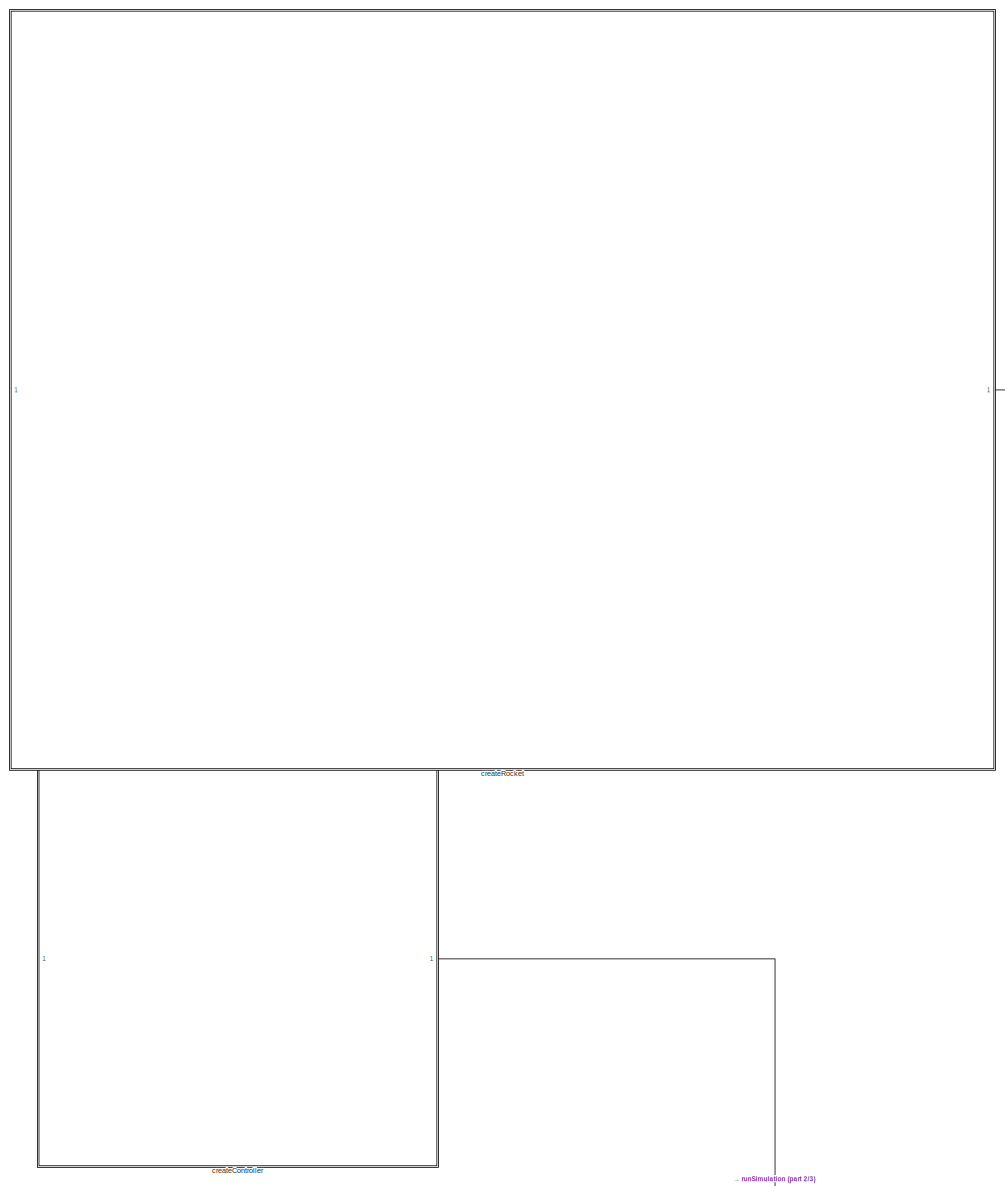
[diagram: root canvas - part 1/3, top left region]
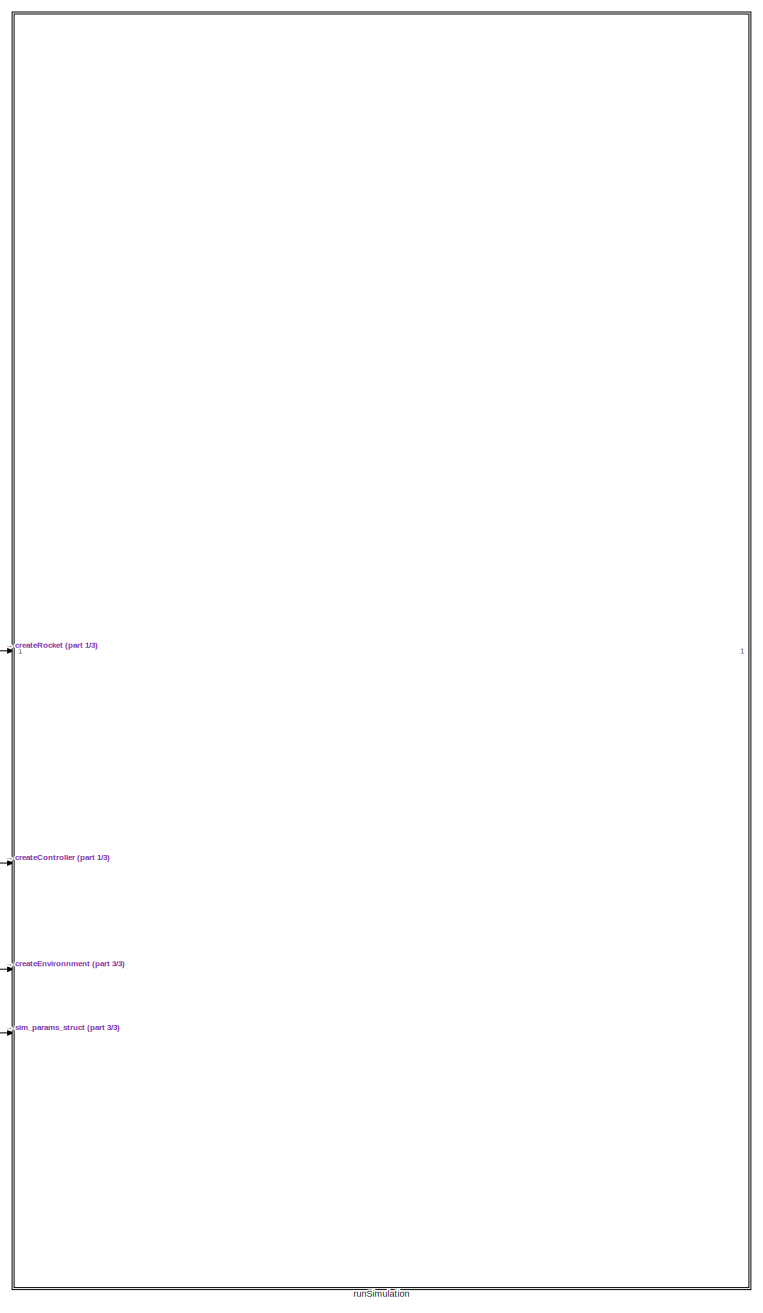
[diagram: root canvas - part 2/3, middle right region]
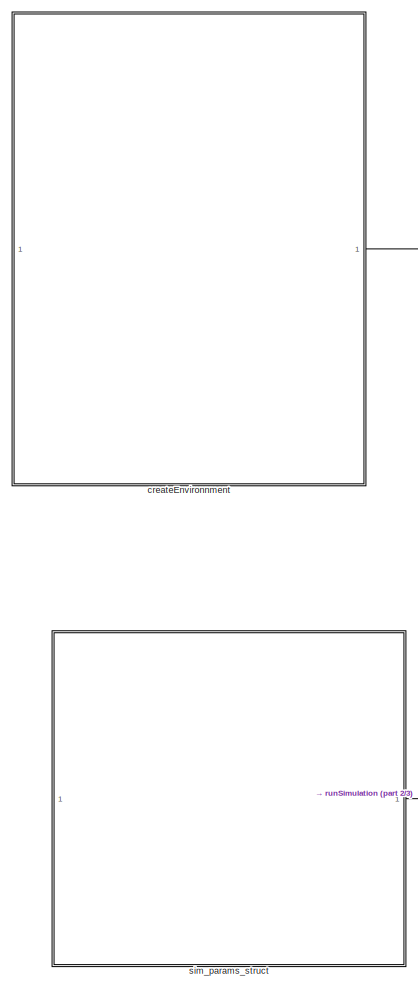
[diagram: root canvas - part 3/3, bottom left region]
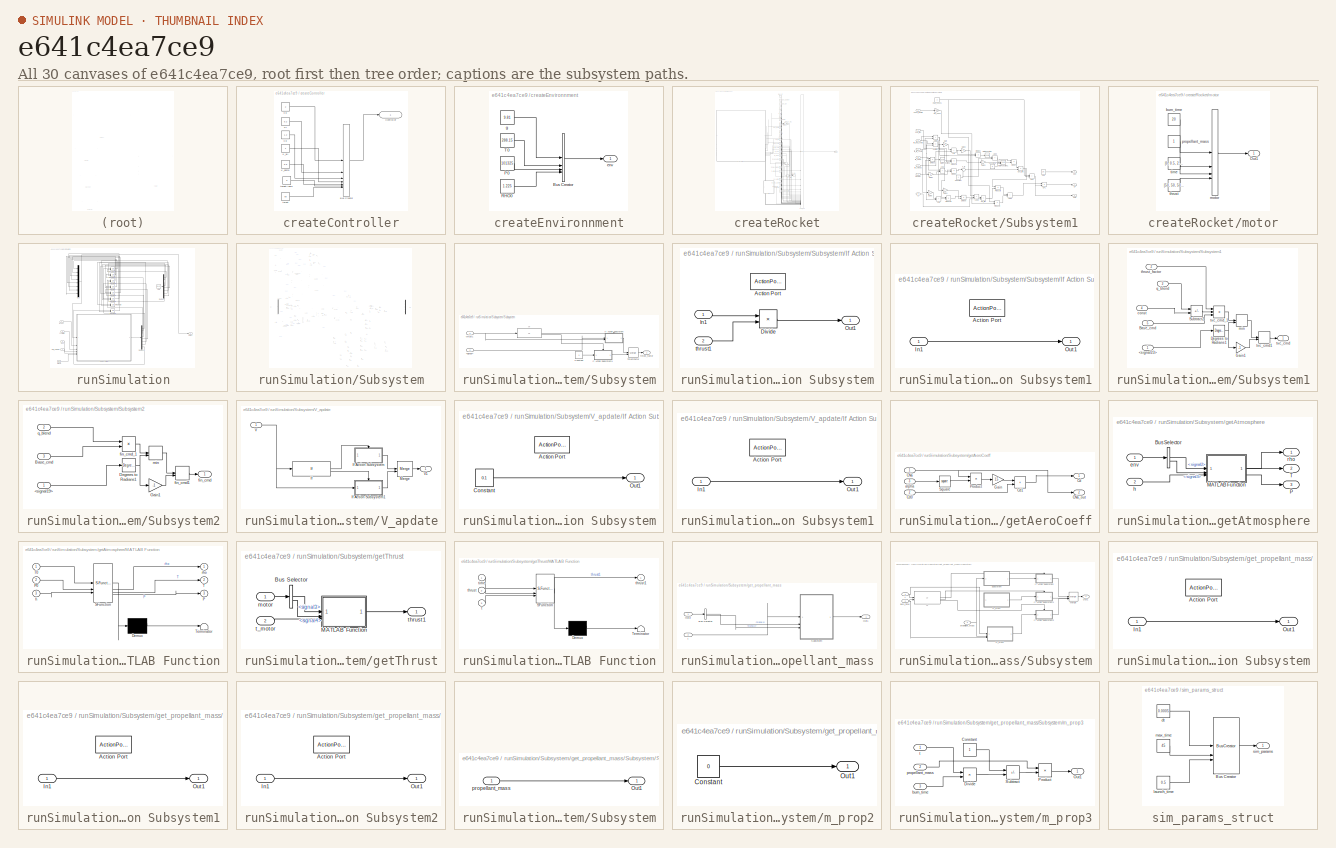
[diagram: thumbnail index - all 30 canvases of the model, root first then tree order]
MODEL slx_e641c4ea7ce9
KIND model
CONFIG AbsTol = auto
CONFIG EnableMultiTasking = off
CONFIG FixedStep = auto
CONFIG MaxStep = auto
CONFIG MinStep = auto
CONFIG RelTol = 1e-3
CONFIG SampleTimeConstraint = Unconstrained
CONFIG SolverName = VariableStepAuto
CONFIG StartTime = 0.0
CONFIG StopTime = 10.0
BLOCK [SubSystem] createController
  TreatAsAtomicUnit = on
BLOCK [BusCreator] createController/Bus Creator
  DisplayOption = bar
  InheritFromInputs = on
  Inputs = 7
BLOCK [Outport] createController/Controller
BLOCK [Constant] createController/K_all
BLOCK [Constant] createController/K_damp
  Value = 0.5
BLOCK [Constant] createController/Kd
  Value = 1.2
BLOCK [Constant] createController/Ki
  Value = 0.2
BLOCK [Constant] createController/Kp
  Value = 2
BLOCK [Constant] createController/targetAngle
  Value = 0
BLOCK [Constant] createController/thrust
  Value = 60
BLOCK [SubSystem] createEnvironnment
  TreatAsAtomicUnit = on
BLOCK [BusCreator] createEnvironnment/Bus Creator
  DisplayOption = bar
  InheritFromInputs = on
  Inputs = 4
BLOCK [Constant] createEnvironnment/P0
  Value = 101325
BLOCK [Constant] createEnvironnment/RHO0
  Value = 1.225
BLOCK [Constant] createEnvironnment/T0
  Value = 288.15
BLOCK [Outport] createEnvironnment/env
BLOCK [Constant] createEnvironnment/g
  Value = 9.81
BLOCK [SubSystem] createRocket
BLOCK [Sum] createRocket/Add
  IconShape = rectangular
BLOCK [Constant] createRocket/Iy_dry
  Value = 0.8
BLOCK [Constant] createRocket/Iy_wet
BLOCK [Gain] createRocket/Multiply
  Gain = 1/2
BLOCK [Constant] createRocket/Pi
  OutDataTypeStr = Inherit: Inherit via back propagation
  Value = pi
BLOCK [Product] createRocket/Product
  Inputs = 3
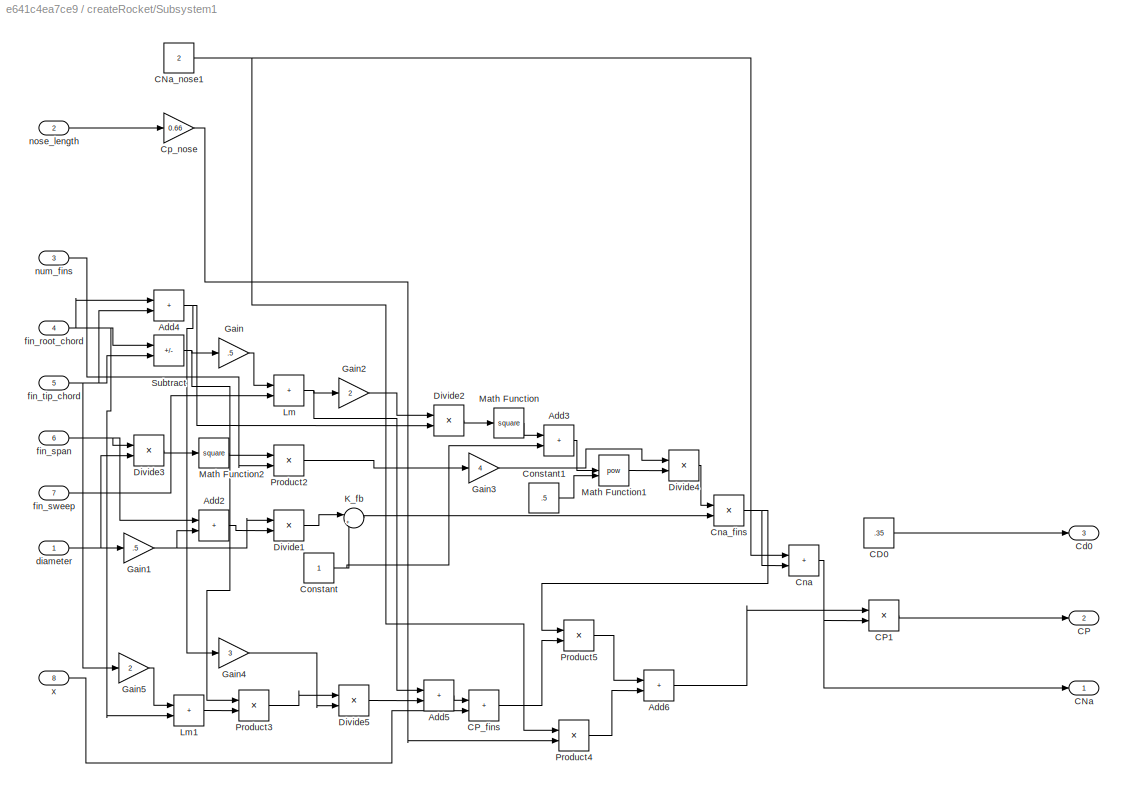
BLOCK [SubSystem] createRocket/Subsystem1
  PortSchema = {"entries":[{"content":{"sides":[{"content":{},"type":"ConnectorPlacement.EquallySpacedRectSide","uuid":"6679e0f2-b643-4e75-9411-8b79dd5cee92"},{"content":{"connectorIds":["In1","In2","In3","In4","In5","In6","In7","In8"],"side":"RIGHT"},"type":"ConnectorPlacement.EquallySpacedRectSide","uuid":"6d3ac53c-a821-4766-a15e-70655263746a"},{"content":{"side":"TOP"},"type":"ConnectorPlacement.EquallySpaced...<+405ch>
BLOCK [Sum] createRocket/Subsystem1/Add2
  IconShape = rectangular
BLOCK [Sum] createRocket/Subsystem1/Add3
  IconShape = rectangular
BLOCK [Sum] createRocket/Subsystem1/Add4
  IconShape = rectangular
BLOCK [Sum] createRocket/Subsystem1/Add5
  IconShape = rectangular
BLOCK [Sum] createRocket/Subsystem1/Add6
  IconShape = rectangular
BLOCK [Constant] createRocket/Subsystem1/CD0
  Value = .35
BLOCK [Outport] createRocket/Subsystem1/CNa
BLOCK [Constant] createRocket/Subsystem1/CNa_nose1
  Value = 2
BLOCK [Outport] createRocket/Subsystem1/CP
  Port = 2
BLOCK [Product] createRocket/Subsystem1/CP1
  Inputs = */
BLOCK [Sum] createRocket/Subsystem1/CP_fins
  IconShape = rectangular
BLOCK [Outport] createRocket/Subsystem1/Cd0
  Port = 3
BLOCK [Sum] createRocket/Subsystem1/Cna
  IconShape = rectangular
BLOCK [Product] createRocket/Subsystem1/Cna_fins
BLOCK [Constant] createRocket/Subsystem1/Constant
BLOCK [Constant] createRocket/Subsystem1/Constant1
  Value = .5
BLOCK [Gain] createRocket/Subsystem1/Cp_nose
  Gain = 0.66
BLOCK [Product] createRocket/Subsystem1/Divide1
  Inputs = */
BLOCK [Product] createRocket/Subsystem1/Divide2
  Inputs = */
BLOCK [Product] createRocket/Subsystem1/Divide3
  Inputs = */
BLOCK [Product] createRocket/Subsystem1/Divide4
  Inputs = */
BLOCK [Product] createRocket/Subsystem1/Divide5
  Inputs = */
BLOCK [Gain] createRocket/Subsystem1/Gain
  Gain = .5
BLOCK [Gain] createRocket/Subsystem1/Gain1
  Gain = .5
BLOCK [Gain] createRocket/Subsystem1/Gain2
  Gain = 2
BLOCK [Gain] createRocket/Subsystem1/Gain3
  Gain = 4
BLOCK [Gain] createRocket/Subsystem1/Gain4
  Gain = 3
BLOCK [Gain] createRocket/Subsystem1/Gain5
  Gain = 2
BLOCK [Sum] createRocket/Subsystem1/K_fb
  Inputs = |++
BLOCK [Sum] createRocket/Subsystem1/Lm
  IconShape = rectangular
BLOCK [Sum] createRocket/Subsystem1/Lm1
  IconShape = rectangular
BLOCK [Math] createRocket/Subsystem1/Math Function
  Operator = square
BLOCK [Math] createRocket/Subsystem1/Math Function1
  Operator = pow
BLOCK [Math] createRocket/Subsystem1/Math Function2
  Operator = square
BLOCK [Product] createRocket/Subsystem1/Product2
BLOCK [Product] createRocket/Subsystem1/Product3
BLOCK [Product] createRocket/Subsystem1/Product4
BLOCK [Product] createRocket/Subsystem1/Product5
BLOCK [Sum] createRocket/Subsystem1/Subtract
  IconShape = rectangular
  Inputs = +-
BLOCK [Inport] createRocket/Subsystem1/diameter
BLOCK [Inport] createRocket/Subsystem1/fin_root_chord
  Port = 4
BLOCK [Inport] createRocket/Subsystem1/fin_span
  Port = 6
BLOCK [Inport] createRocket/Subsystem1/fin_sweep
  Port = 7
BLOCK [Inport] createRocket/Subsystem1/fin_tip_chord
  Port = 5
BLOCK [Inport] createRocket/Subsystem1/nose_length
  Port = 2
BLOCK [Inport] createRocket/Subsystem1/num_fins
  Port = 3
BLOCK [Inport] createRocket/Subsystem1/x
  Port = 8
BLOCK [Constant] createRocket/actuator_max_speed
  Value = 400
BLOCK [Constant] createRocket/actuator_resolution
  Value = 0.5
BLOCK [Constant] createRocket/cg_dry
  Value = 0.60
BLOCK [Constant] createRocket/cg_wet
  Value = 0.65
BLOCK [Constant] createRocket/diameter
  Value = 0.1
BLOCK [Product] createRocket/fin_area
  Inputs = 3
BLOCK [Sum] createRocket/fin_control_position
  IconShape = rectangular
BLOCK [Constant] createRocket/fin_effectiveness
  Value = 2
BLOCK [Constant] createRocket/fin_max_deflection
  Value = 15
BLOCK [Constant] createRocket/fin_root_chord
  Value = 0.15
BLOCK [Constant] createRocket/fin_root_postion
  Value = 0.95
BLOCK [Constant] createRocket/fin_span
  Value = 0.1
BLOCK [Constant] createRocket/fin_sweep
  Value = 0.05
BLOCK [Constant] createRocket/fin_tip_chord
  Value = 0.08
BLOCK [Constant] createRocket/length
  Value = 1.2
BLOCK [Constant] createRocket/mass_dry
  Value = 2
BLOCK [Constant] createRocket/mass_propellent
  Value = 0.5
BLOCK [Constant] createRocket/mass_wet
  Value = 2.5
BLOCK [SubSystem] createRocket/motor
BLOCK [Outport] createRocket/motor/Out1
BLOCK [Constant] createRocket/motor/burn_time
  Value = 20
BLOCK [BusCreator] createRocket/motor/motor
  DisplayOption = bar
  InheritFromInputs = on
  Inputs = 4
BLOCK [Constant] createRocket/motor/propellant_mass
BLOCK [Constant] createRocket/motor/thrust
  Value = [50, 50, 50, 50, 50, 50, 50, 50, 0, 0]
BLOCK [Constant] createRocket/motor/time
  Value = [0, 0.5, 2, 5, 10, 15, 18, 19.5, 20, 20.5]
BLOCK [Constant] createRocket/nose_length
  Value = 0.25
BLOCK [Constant] createRocket/num_fins
  Value = 4
BLOCK [Gain] createRocket/reference_area
  Gain = 1/4
BLOCK [Outport] createRocket/rocket
BLOCK [BusCreator] createRocket/rocket_bus
  DisplayOption = bar
  InheritFromInputs = on
  Inputs = 29
BLOCK [Constant] createRocket/tvc_max_angle
  Value = 20
BLOCK [Constant] createRocket/tvc_position
  Value = 1.15
BLOCK [SubSystem] runSimulation
BLOCK [Clock] runSimulation/Clock
BLOCK [Demux] runSimulation/Demux
  Outputs = 8
BLOCK [Demux] runSimulation/Demux1
  Outputs = 8
BLOCK [Integrator] runSimulation/Integrator
  ContinuousStateAttributes = vz
  InitialConditionSource = external
BLOCK [Integrator] runSimulation/Integrator1
  ContinuousStateAttributes = theta
  InitialConditionSource = external
BLOCK [Integrator] runSimulation/Integrator2
  ContinuousStateAttributes = omega
  InitialConditionSource = external
BLOCK [Integrator] runSimulation/Integrator3
  ContinuousStateAttributes = actuator_angle
  InitialConditionSource = external
BLOCK [Integrator] runSimulation/Integrator4
  ContinuousStateAttributes = int_error
  InitialConditionSource = external
BLOCK [Integrator] runSimulation/Integrator5
  ContinuousStateAttributes = vx
  InitialConditionSource = external
BLOCK [Integrator] runSimulation/Integrator6
  ContinuousStateAttributes = z
  InitialConditionSource = external
BLOCK [Integrator] runSimulation/Integrator7
  ContinuousStateAttributes = x
  InitialConditionSource = external
BLOCK [Mux] runSimulation/Mux
  DisplayOption = bar
  Inputs = 8
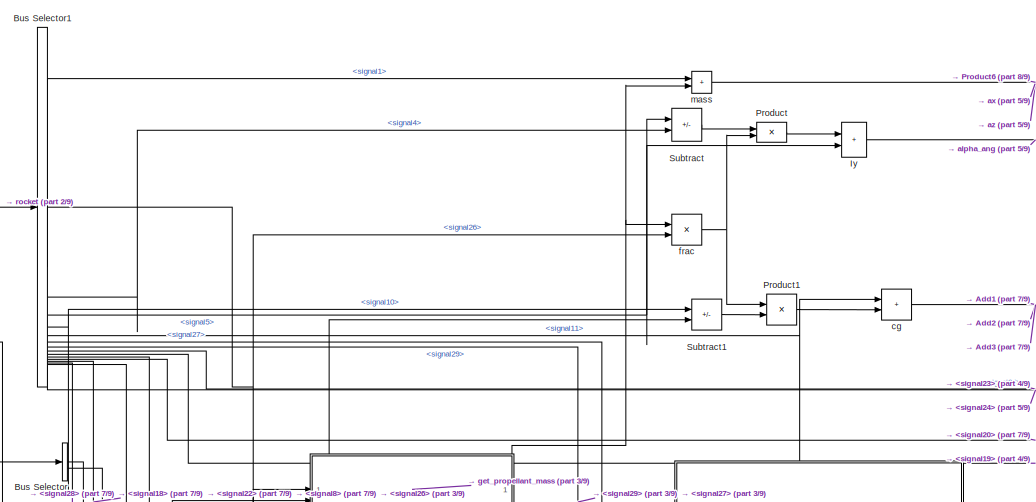
[diagram: runSimulation/Subsystem - part 1/9, top left region]
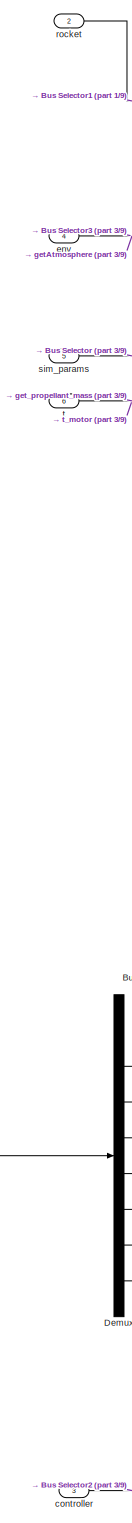
[diagram: runSimulation/Subsystem - part 2/9, middle left region]
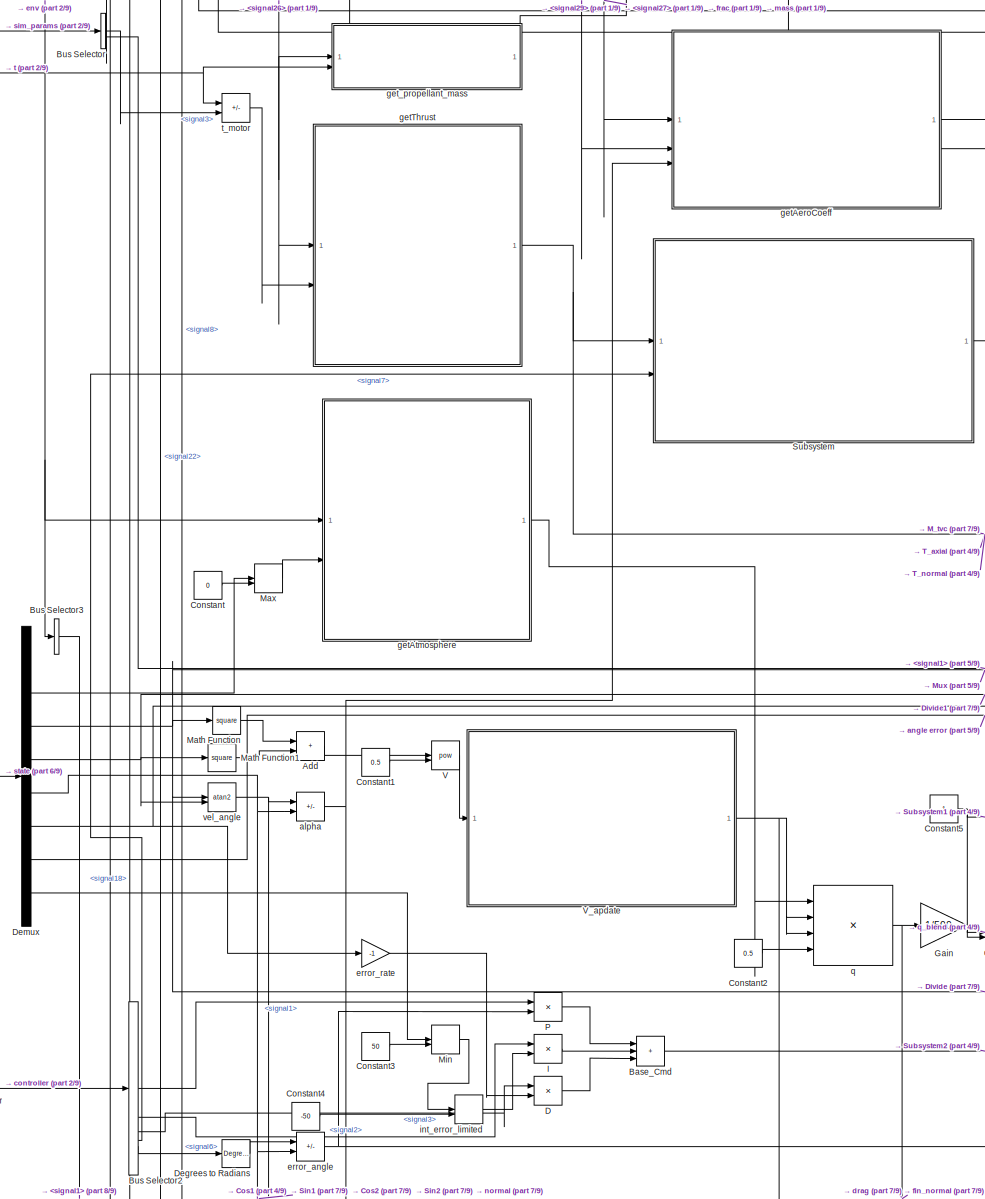
[diagram: runSimulation/Subsystem - part 3/9, middle left region]
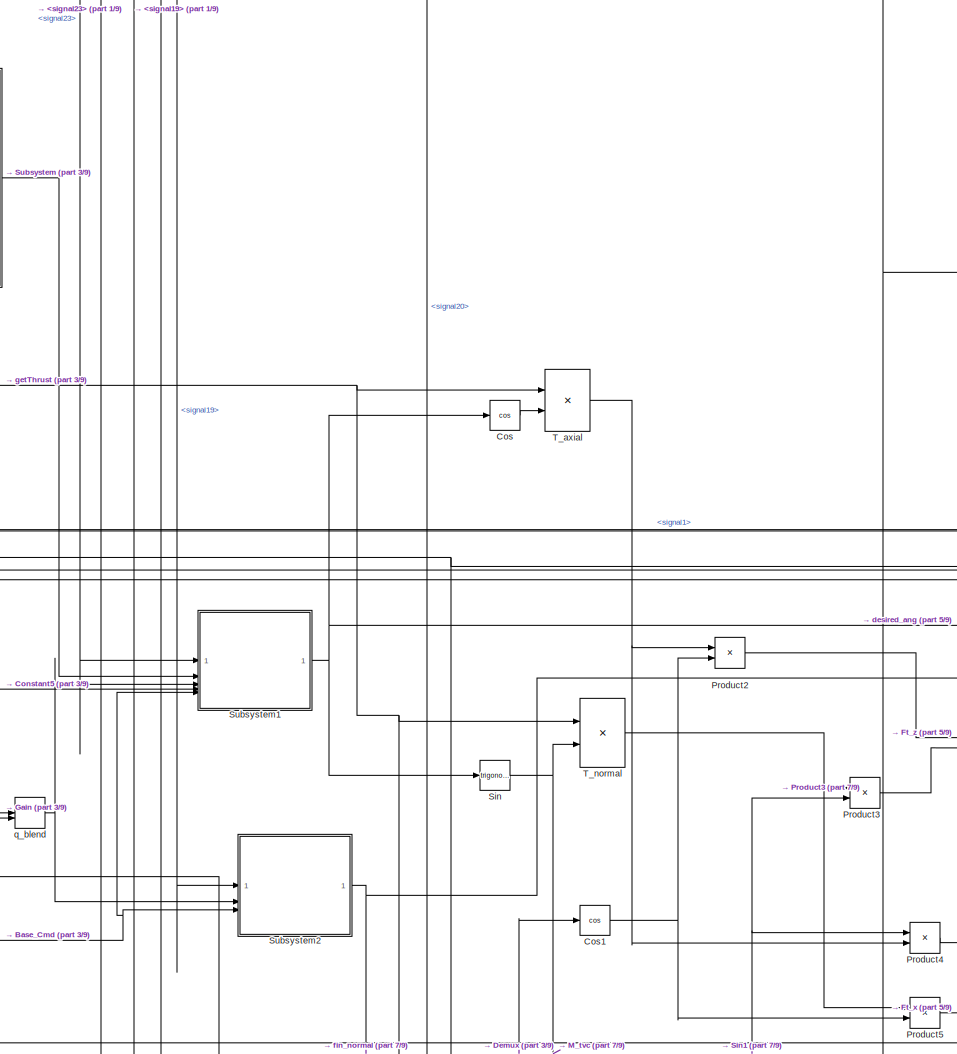
[diagram: runSimulation/Subsystem - part 4/9, central region]
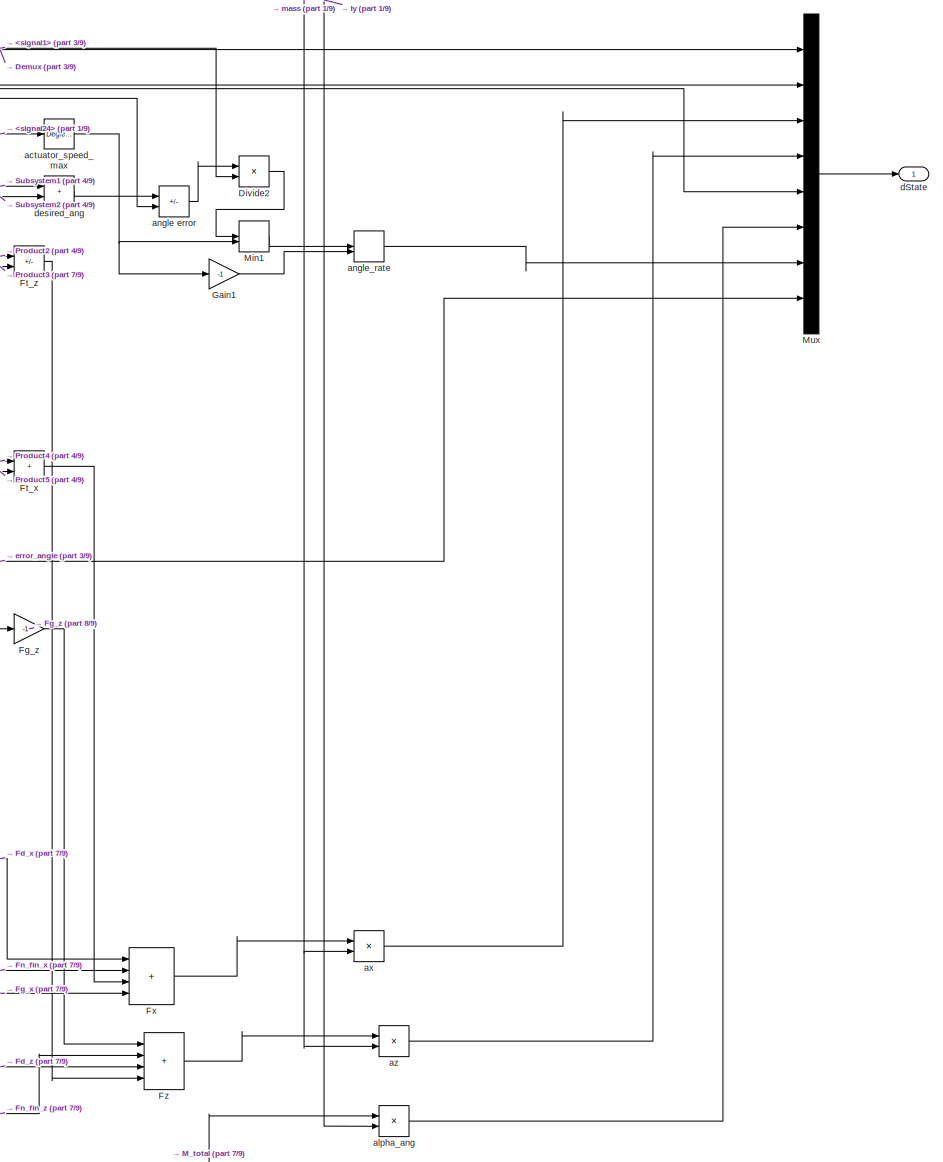
[diagram: runSimulation/Subsystem - part 5/9, middle right region]
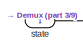
[diagram: runSimulation/Subsystem - part 6/9, middle left region]
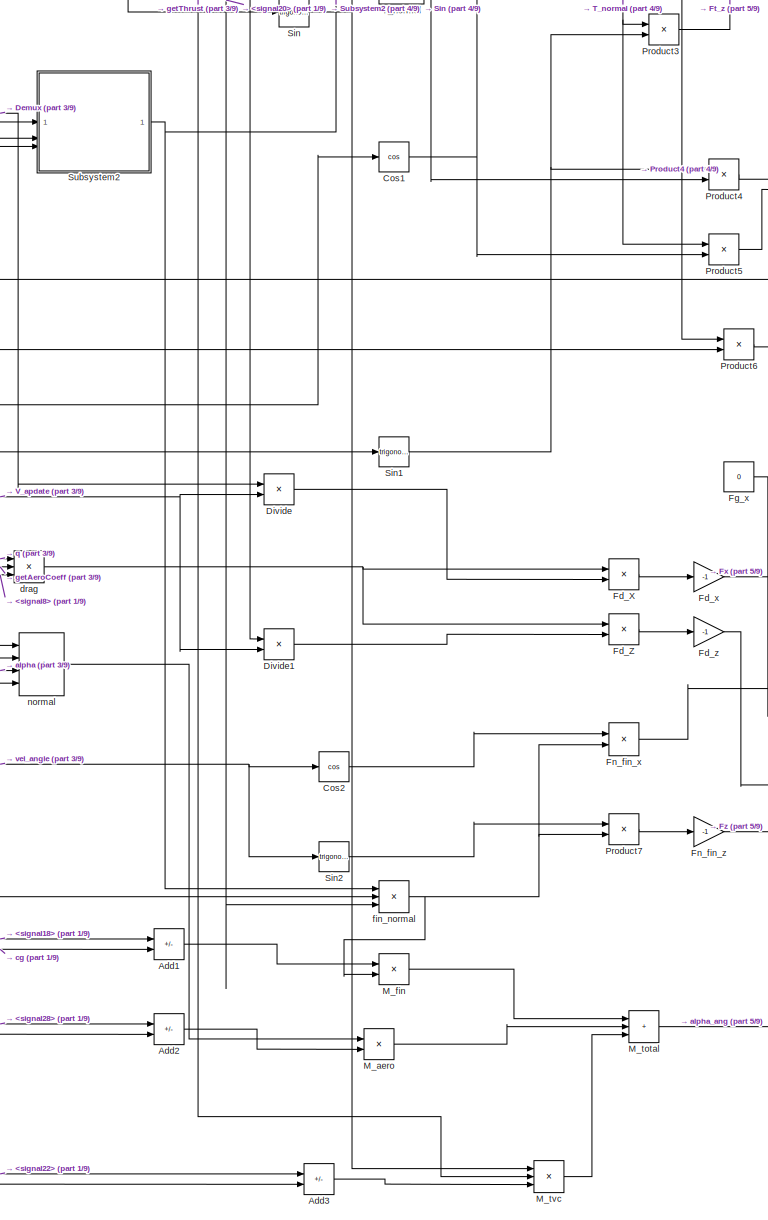
[diagram: runSimulation/Subsystem - part 7/9, bottom center region]
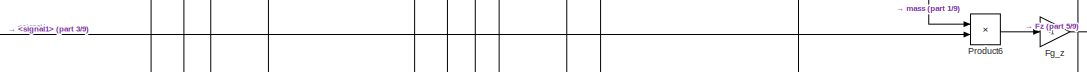
[diagram: runSimulation/Subsystem - part 8/9, central region]
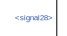
[diagram: runSimulation/Subsystem - part 9/9, bottom left region]
BLOCK [SubSystem] runSimulation/Subsystem
BLOCK [Sum] runSimulation/Subsystem/Add
  IconShape = rectangular
BLOCK [Sum] runSimulation/Subsystem/Add1
  IconShape = rectangular
  Inputs = +-
BLOCK [Sum] runSimulation/Subsystem/Add2
  IconShape = rectangular
  Inputs = +-
BLOCK [Sum] runSimulation/Subsystem/Add3
  IconShape = rectangular
  Inputs = +-
BLOCK [Sum] runSimulation/Subsystem/Base_Cmd
  IconShape = rectangular
  Inputs = +++
BLOCK [BusSelector] runSimulation/Subsystem/Bus Selector
  OutputSignals = signal3,signal1
BLOCK [BusSelector] runSimulation/Subsystem/Bus Selector1
  OutputSignals = signal26,signal1,signal4,signal5,signal10,signal11,signal27,signal29,signal23,signal19,signal8,signal20,signal18,signal28,signal22,signal24
BLOCK [BusSelector] runSimulation/Subsystem/Bus Selector2
  OutputSignals = signal1,signal2,signal3,signal7,signal6
BLOCK [BusSelector] runSimulation/Subsystem/Bus Selector3
  OutputSignals = signal1
BLOCK [Constant] runSimulation/Subsystem/Constant
  Value = 0
BLOCK [Constant] runSimulation/Subsystem/Constant1
  Value = 0.5
BLOCK [Constant] runSimulation/Subsystem/Constant2
  Value = 0.5
BLOCK [Constant] runSimulation/Subsystem/Constant3
  Value = 50
BLOCK [Constant] runSimulation/Subsystem/Constant4
  Value = -50
BLOCK [Constant] runSimulation/Subsystem/Constant5
BLOCK [Trigonometry] runSimulation/Subsystem/Cos
  Operator = cos
BLOCK [Trigonometry] runSimulation/Subsystem/Cos1
  Operator = cos
BLOCK [Trigonometry] runSimulation/Subsystem/Cos2
  Operator = cos
BLOCK [Product] runSimulation/Subsystem/D
BLOCK [Reference] runSimulation/Subsystem/Degrees to Radians  REF=simulink_extras/Transformations/Degrees to
Radians
  SourceBlock = simulink_extras/Transformations/Degrees to\nRadians
  SourceType = DegreesToRadians
BLOCK [Demux] runSimulation/Subsystem/Demux
  Outputs = 8
BLOCK [Product] runSimulation/Subsystem/Divide
  Inputs = */
BLOCK [Product] runSimulation/Subsystem/Divide1
  Inputs = */
BLOCK [Product] runSimulation/Subsystem/Divide2
  Inputs = */
BLOCK [Product] runSimulation/Subsystem/Fd_X
BLOCK [Product] runSimulation/Subsystem/Fd_Z
BLOCK [Gain] runSimulation/Subsystem/Fd_x
  Gain = -1
BLOCK [Gain] runSimulation/Subsystem/Fd_z
  Gain = -1
BLOCK [Constant] runSimulation/Subsystem/Fg_x
  Value = 0
BLOCK [Gain] runSimulation/Subsystem/Fg_z
  Gain = -1
BLOCK [Product] runSimulation/Subsystem/Fn_fin_x
BLOCK [Gain] runSimulation/Subsystem/Fn_fin_z
  Gain = -1
BLOCK [Sum] runSimulation/Subsystem/Ft_x
  IconShape = rectangular
BLOCK [Sum] runSimulation/Subsystem/Ft_z
  IconShape = rectangular
  Inputs = +-
BLOCK [Sum] runSimulation/Subsystem/Fx
  IconShape = rectangular
  Inputs = ++++
BLOCK [Sum] runSimulation/Subsystem/Fz
  IconShape = rectangular
  Inputs = ++++
BLOCK [Gain] runSimulation/Subsystem/Gain
  Gain = 1/500
BLOCK [Gain] runSimulation/Subsystem/Gain1
  Gain = -1
BLOCK [Product] runSimulation/Subsystem/I
BLOCK [Sum] runSimulation/Subsystem/Iy
  IconShape = rectangular
BLOCK [Product] runSimulation/Subsystem/M_aero
BLOCK [Product] runSimulation/Subsystem/M_fin
BLOCK [Sum] runSimulation/Subsystem/M_total
  IconShape = rectangular
  Inputs = +++
BLOCK [Product] runSimulation/Subsystem/M_tvc
  Inputs = 3
BLOCK [Math] runSimulation/Subsystem/Math Function
  Operator = square
BLOCK [Math] runSimulation/Subsystem/Math Function1
  Operator = square
BLOCK [MinMax] runSimulation/Subsystem/Max
  Function = max
  Inputs = 2
BLOCK [MinMax] runSimulation/Subsystem/Min
  Inputs = 2
BLOCK [MinMax] runSimulation/Subsystem/Min1
  Inputs = 2
BLOCK [Mux] runSimulation/Subsystem/Mux
  DisplayOption = bar
  Inputs = 8
BLOCK [Product] runSimulation/Subsystem/P
BLOCK [Product] runSimulation/Subsystem/Product
BLOCK [Product] runSimulation/Subsystem/Product1
BLOCK [Product] runSimulation/Subsystem/Product2
BLOCK [Product] runSimulation/Subsystem/Product3
BLOCK [Product] runSimulation/Subsystem/Product4
BLOCK [Product] runSimulation/Subsystem/Product5
BLOCK [Product] runSimulation/Subsystem/Product6
BLOCK [Product] runSimulation/Subsystem/Product7
BLOCK [Trigonometry] runSimulation/Subsystem/Sin
BLOCK [Trigonometry] runSimulation/Subsystem/Sin1
BLOCK [Trigonometry] runSimulation/Subsystem/Sin2
BLOCK [SubSystem] runSimulation/Subsystem/Subsystem
BLOCK [Inport] runSimulation/Subsystem/Subsystem/<signal7>
  Port = 2
BLOCK [Constant] runSimulation/Subsystem/Subsystem/Constant
BLOCK [If] runSimulation/Subsystem/Subsystem/If
  IfExpression = u1 > 10
BLOCK [SubSystem] runSimulation/Subsystem/Subsystem/If Action Subsystem
  TreatAsAtomicUnit = on
BLOCK [ActionPort] runSimulation/Subsystem/Subsystem/If Action Subsystem/Action Port
  ActionPortLabel = if(u1 > 10)
BLOCK [Product] runSimulation/Subsystem/Subsystem/If Action Subsystem/Divide
  Inputs = */
BLOCK [Inport] runSimulation/Subsystem/Subsystem/If Action Subsystem/In1
BLOCK [Outport] runSimulation/Subsystem/Subsystem/If Action Subsystem/Out1
BLOCK [Inport] runSimulation/Subsystem/Subsystem/If Action Subsystem/thrust1
  Port = 2
BLOCK [SubSystem] runSimulation/Subsystem/Subsystem/If Action Subsystem1
  TreatAsAtomicUnit = on
BLOCK [ActionPort] runSimulation/Subsystem/Subsystem/If Action Subsystem1/Action Port
  ActionPortLabel = else
BLOCK [Inport] runSimulation/Subsystem/Subsystem/If Action Subsystem1/In1
BLOCK [Outport] runSimulation/Subsystem/Subsystem/If Action Subsystem1/Out1
BLOCK [Merge] runSimulation/Subsystem/Subsystem/ThrustFactor
BLOCK [Inport] runSimulation/Subsystem/Subsystem/thrust1
BLOCK [Outport] runSimulation/Subsystem/Subsystem/thrust_factor
BLOCK [SubSystem] runSimulation/Subsystem/Subsystem1
BLOCK [Inport] runSimulation/Subsystem/Subsystem1/<signal23>
BLOCK [Inport] runSimulation/Subsystem/Subsystem1/Base_cmd
  Port = 5
BLOCK [Reference] runSimulation/Subsystem/Subsystem1/Degrees to Radians1  REF=simulink_extras/Transformations/Degrees to
Radians
  SourceBlock = simulink_extras/Transformations/Degrees to\nRadians
  SourceType = DegreesToRadians
BLOCK [Gain] runSimulation/Subsystem/Subsystem1/Gain1
  Gain = -1
BLOCK [Sum] runSimulation/Subsystem/Subsystem1/Subtract2
  IconShape = rectangular
  Inputs = +-
BLOCK [Inport] runSimulation/Subsystem/Subsystem1/const
  Port = 4
BLOCK [MinMax] runSimulation/Subsystem/Subsystem1/min
  Inputs = 2
BLOCK [Inport] runSimulation/Subsystem/Subsystem1/q_blend
  Port = 3
BLOCK [Inport] runSimulation/Subsystem/Subsystem1/thrust_factor
  Port = 2
BLOCK [Outport] runSimulation/Subsystem/Subsystem1/tvc_cmd
BLOCK [MinMax] runSimulation/Subsystem/Subsystem1/tvc_cmd1
  Function = max
  Inputs = 2
BLOCK [Product] runSimulation/Subsystem/Subsystem1/tvc_cmd_1
  Inputs = 3
BLOCK [SubSystem] runSimulation/Subsystem/Subsystem2
BLOCK [Inport] runSimulation/Subsystem/Subsystem2/<signal19>
BLOCK [Inport] runSimulation/Subsystem/Subsystem2/Base_cmd
  Port = 3
BLOCK [Reference] runSimulation/Subsystem/Subsystem2/Degrees to Radians1  REF=simulink_extras/Transformations/Degrees to
Radians
  SourceBlock = simulink_extras/Transformations/Degrees to\nRadians
  SourceType = DegreesToRadians
BLOCK [Gain] runSimulation/Subsystem/Subsystem2/Gain1
  Gain = -1
BLOCK [Outport] runSimulation/Subsystem/Subsystem2/fin_cmd
BLOCK [MinMax] runSimulation/Subsystem/Subsystem2/fin_cmd1
  Function = max
  Inputs = 2
BLOCK [Product] runSimulation/Subsystem/Subsystem2/fin_cmd_1
BLOCK [MinMax] runSimulation/Subsystem/Subsystem2/min
  Inputs = 2
BLOCK [Inport] runSimulation/Subsystem/Subsystem2/q_blend
  Port = 2
BLOCK [Sum] runSimulation/Subsystem/Subtract
  IconShape = rectangular
  Inputs = +-
BLOCK [Sum] runSimulation/Subsystem/Subtract1
  IconShape = rectangular
  Inputs = +-
BLOCK [Product] runSimulation/Subsystem/T_axial
BLOCK [Product] runSimulation/Subsystem/T_normal
BLOCK [Math] runSimulation/Subsystem/V
  Operator = pow
BLOCK [SubSystem] runSimulation/Subsystem/V_apdate
BLOCK [If] runSimulation/Subsystem/V_apdate/If
  IfExpression = u1 < 0.1
BLOCK [SubSystem] runSimulation/Subsystem/V_apdate/If Action Subsystem
  TreatAsAtomicUnit = on
BLOCK [ActionPort] runSimulation/Subsystem/V_apdate/If Action Subsystem/Action Port
  ActionPortLabel = if(u1 < 0.1)
BLOCK [Constant] runSimulation/Subsystem/V_apdate/If Action Subsystem/Constant
  Value = 0.1
BLOCK [Outport] runSimulation/Subsystem/V_apdate/If Action Subsystem/Out1
BLOCK [SubSystem] runSimulation/Subsystem/V_apdate/If Action Subsystem1
  TreatAsAtomicUnit = on
BLOCK [ActionPort] runSimulation/Subsystem/V_apdate/If Action Subsystem1/Action Port
  ActionPortLabel = else
BLOCK [Inport] runSimulation/Subsystem/V_apdate/If Action Subsystem1/In1
BLOCK [Outport] runSimulation/Subsystem/V_apdate/If Action Subsystem1/Out1
BLOCK [Merge] runSimulation/Subsystem/V_apdate/Merge
BLOCK [Inport] runSimulation/Subsystem/V_apdate/V
BLOCK [Outport] runSimulation/Subsystem/V_apdate/V1
BLOCK [Reference] runSimulation/Subsystem/actuator_speed_max  REF=simulink_extras/Transformations/Degrees to
Radians
  SourceBlock = simulink_extras/Transformations/Degrees to\nRadians
  SourceType = DegreesToRadians
BLOCK [Sum] runSimulation/Subsystem/alpha
  IconShape = rectangular
  Inputs = +-
BLOCK [Product] runSimulation/Subsystem/alpha_ang
  Inputs = */
BLOCK [Sum] runSimulation/Subsystem/angle error
  IconShape = rectangular
  Inputs = +-
BLOCK [MinMax] runSimulation/Subsystem/angle_rate
  Function = max
  Inputs = 2
BLOCK [Product] runSimulation/Subsystem/ax
  Inputs = */
BLOCK [Product] runSimulation/Subsystem/az
  Inputs = */
BLOCK [Sum] runSimulation/Subsystem/cg
  IconShape = rectangular
BLOCK [Inport] runSimulation/Subsystem/controller
  Port = 3
BLOCK [Outport] runSimulation/Subsystem/dState
BLOCK [Sum] runSimulation/Subsystem/desired_ang
  IconShape = rectangular
BLOCK [Product] runSimulation/Subsystem/drag
  Inputs = 3
BLOCK [Inport] runSimulation/Subsystem/env
  Port = 4
BLOCK [Sum] runSimulation/Subsystem/error_angle
  IconShape = rectangular
  Inputs = +-
BLOCK [Gain] runSimulation/Subsystem/error_rate
  Gain = -1
BLOCK [Product] runSimulation/Subsystem/fin_normal
  Inputs = 3
BLOCK [Product] runSimulation/Subsystem/frac
  Inputs = */
BLOCK [SubSystem] runSimulation/Subsystem/getAeroCoeff
BLOCK [Inport] runSimulation/Subsystem/getAeroCoeff/CNa
BLOCK [Outport] runSimulation/Subsystem/getAeroCoeff/CNa_out
  Port = 2
BLOCK [Outport] runSimulation/Subsystem/getAeroCoeff/Cd
BLOCK [Inport] runSimulation/Subsystem/getAeroCoeff/Cd0
  Port = 2
BLOCK [Sum] runSimulation/Subsystem/getAeroCoeff/Cd1
  IconShape = rectangular
BLOCK [Gain] runSimulation/Subsystem/getAeroCoeff/Gain
  Gain = 1.5
BLOCK [Product] runSimulation/Subsystem/getAeroCoeff/Product
BLOCK [Math] runSimulation/Subsystem/getAeroCoeff/Square
  Operator = square
BLOCK [Inport] runSimulation/Subsystem/getAeroCoeff/alpha
  Port = 3
BLOCK [SubSystem] runSimulation/Subsystem/getAtmosphere
BLOCK [BusSelector] runSimulation/Subsystem/getAtmosphere/Bus Selector
  OutputSignals = signal2,signal3
BLOCK [SubSystem] runSimulation/Subsystem/getAtmosphere/MATLAB Function
  ErrorFcn = Stateflow.Translate.translate
  PermitHierarchicalResolution = ExplicitOnly
  SFBlockType = MATLAB Function
  TreatAsAtomicUnit = on
BLOCK [Demux] runSimulation/Subsystem/getAtmosphere/MATLAB Function/ Demux 
  Outputs = 1
BLOCK [S-Function] runSimulation/Subsystem/getAtmosphere/MATLAB Function/ SFunction 
  EnableBusSupport = off
  FunctionName = sf_sfun
  PortCounts = [3 4]
  SFcnIsStateOwnerBlock = off
  SFunctionDeploymentMode = off
  Tag = Stateflow S-Function 1
BLOCK [Terminator] runSimulation/Subsystem/getAtmosphere/MATLAB Function/ Terminator 
BLOCK [Outport] runSimulation/Subsystem/getAtmosphere/MATLAB Function/P
  Port = 3
BLOCK [Inport] runSimulation/Subsystem/getAtmosphere/MATLAB Function/P0
  Port = 2
BLOCK [Outport] runSimulation/Subsystem/getAtmosphere/MATLAB Function/T
  Port = 2
BLOCK [Inport] runSimulation/Subsystem/getAtmosphere/MATLAB Function/T0
BLOCK [Inport] runSimulation/Subsystem/getAtmosphere/MATLAB Function/h
  Port = 3
BLOCK [Outport] runSimulation/Subsystem/getAtmosphere/MATLAB Function/rho
BLOCK [Outport] runSimulation/Subsystem/getAtmosphere/P
  Port = 3
BLOCK [Outport] runSimulation/Subsystem/getAtmosphere/T
  Port = 2
BLOCK [Inport] runSimulation/Subsystem/getAtmosphere/env
BLOCK [Inport] runSimulation/Subsystem/getAtmosphere/h
  Port = 2
BLOCK [Outport] runSimulation/Subsystem/getAtmosphere/rho
BLOCK [SubSystem] runSimulation/Subsystem/getThrust
BLOCK [BusSelector] runSimulation/Subsystem/getThrust/Bus Selector
  OutputSignals = signal3,signal4
BLOCK [SubSystem] runSimulation/Subsystem/getThrust/MATLAB Function
  ErrorFcn = Stateflow.Translate.translate
  PermitHierarchicalResolution = ExplicitOnly
  SFBlockType = MATLAB Function
  TreatAsAtomicUnit = on
BLOCK [Demux] runSimulation/Subsystem/getThrust/MATLAB Function/ Demux 
  Outputs = 1
BLOCK [S-Function] runSimulation/Subsystem/getThrust/MATLAB Function/ SFunction 
  EnableBusSupport = off
  FunctionName = sf_sfun
  PortCounts = [3 2]
  SFcnIsStateOwnerBlock = off
  SFunctionDeploymentMode = off
  Tag = Stateflow S-Function 2
BLOCK [Terminator] runSimulation/Subsystem/getThrust/MATLAB Function/ Terminator 
BLOCK [Inport] runSimulation/Subsystem/getThrust/MATLAB Function/t
  Port = 3
BLOCK [Inport] runSimulation/Subsystem/getThrust/MATLAB Function/thrust
  Port = 2
BLOCK [Outport] runSimulation/Subsystem/getThrust/MATLAB Function/thrust1
BLOCK [Inport] runSimulation/Subsystem/getThrust/MATLAB Function/time
BLOCK [Inport] runSimulation/Subsystem/getThrust/motor
BLOCK [Inport] runSimulation/Subsystem/getThrust/t_motor
  Port = 2
BLOCK [Outport] runSimulation/Subsystem/getThrust/thrust1
BLOCK [SubSystem] runSimulation/Subsystem/get_propellant_mass
BLOCK [BusSelector] runSimulation/Subsystem/get_propellant_mass/Bus Selector
  OutputSignals = signal1,signal2
BLOCK [Outport] runSimulation/Subsystem/get_propellant_mass/Out1
BLOCK [SubSystem] runSimulation/Subsystem/get_propellant_mass/Subsystem
BLOCK [If] runSimulation/Subsystem/get_propellant_mass/Subsystem/If
  ElseIfExpressions = u1>=u2
  IfExpression = u1 < 0
  NumInputs = 2
BLOCK [SubSystem] runSimulation/Subsystem/get_propellant_mass/Subsystem/If Action Subsystem
  TreatAsAtomicUnit = on
BLOCK [ActionPort] runSimulation/Subsystem/get_propellant_mass/Subsystem/If Action Subsystem/Action Port
  ActionPortLabel = if(u1 < 0)
BLOCK [Inport] runSimulation/Subsystem/get_propellant_mass/Subsystem/If Action Subsystem/In1
BLOCK [Outport] runSimulation/Subsystem/get_propellant_mass/Subsystem/If Action Subsystem/Out1
BLOCK [SubSystem] runSimulation/Subsystem/get_propellant_mass/Subsystem/If Action Subsystem1
  TreatAsAtomicUnit = on
BLOCK [ActionPort] runSimulation/Subsystem/get_propellant_mass/Subsystem/If Action Subsystem1/Action Port
  ActionPortLabel = elseif(u1>=u2)
BLOCK [Inport] runSimulation/Subsystem/get_propellant_mass/Subsystem/If Action Subsystem1/In1
BLOCK [Outport] runSimulation/Subsystem/get_propellant_mass/Subsystem/If Action Subsystem1/Out1
BLOCK [SubSystem] runSimulation/Subsystem/get_propellant_mass/Subsystem/If Action Subsystem2
  TreatAsAtomicUnit = on
BLOCK [ActionPort] runSimulation/Subsystem/get_propellant_mass/Subsystem/If Action Subsystem2/Action Port
  ActionPortLabel = else
BLOCK [Inport] runSimulation/Subsystem/get_propellant_mass/Subsystem/If Action Subsystem2/In1
BLOCK [Outport] runSimulation/Subsystem/get_propellant_mass/Subsystem/If Action Subsystem2/Out1
BLOCK [Merge] runSimulation/Subsystem/get_propellant_mass/Subsystem/Merge
  Inputs = 3
BLOCK [Outport] runSimulation/Subsystem/get_propellant_mass/Subsystem/Out1
BLOCK [SubSystem] runSimulation/Subsystem/get_propellant_mass/Subsystem/Subsystem
BLOCK [Outport] runSimulation/Subsystem/get_propellant_mass/Subsystem/Subsystem/Out1
BLOCK [Inport] runSimulation/Subsystem/get_propellant_mass/Subsystem/Subsystem/propellant_mass
BLOCK [Inport] runSimulation/Subsystem/get_propellant_mass/Subsystem/burn_time
  Port = 2
BLOCK [SubSystem] runSimulation/Subsystem/get_propellant_mass/Subsystem/m_prop2
BLOCK [Constant] runSimulation/Subsystem/get_propellant_mass/Subsystem/m_prop2/Constant
  Value = 0
BLOCK [Outport] runSimulation/Subsystem/get_propellant_mass/Subsystem/m_prop2/Out1
BLOCK [SubSystem] runSimulation/Subsystem/get_propellant_mass/Subsystem/m_prop3
BLOCK [Constant] runSimulation/Subsystem/get_propellant_mass/Subsystem/m_prop3/Constant
BLOCK [Product] runSimulation/Subsystem/get_propellant_mass/Subsystem/m_prop3/Divide
  Inputs = */
BLOCK [Outport] runSimulation/Subsystem/get_propellant_mass/Subsystem/m_prop3/Out1
BLOCK [Product] runSimulation/Subsystem/get_propellant_mass/Subsystem/m_prop3/Product
BLOCK [Sum] runSimulation/Subsystem/get_propellant_mass/Subsystem/m_prop3/Subtract
  IconShape = rectangular
  Inputs = +-
BLOCK [Inport] runSimulation/Subsystem/get_propellant_mass/Subsystem/m_prop3/burn_time
  Port = 3
BLOCK [Inport] runSimulation/Subsystem/get_propellant_mass/Subsystem/m_prop3/propellant_mass
  Port = 2
BLOCK [Inport] runSimulation/Subsystem/get_propellant_mass/Subsystem/m_prop3/t
BLOCK [Inport] runSimulation/Subsystem/get_propellant_mass/Subsystem/propellant_mass
  Port = 3
BLOCK [Inport] runSimulation/Subsystem/get_propellant_mass/Subsystem/t
BLOCK [Inport] runSimulation/Subsystem/get_propellant_mass/motor
BLOCK [Inport] runSimulation/Subsystem/get_propellant_mass/t
  Port = 2
BLOCK [MinMax] runSimulation/Subsystem/int_error_limited
  Function = max
  Inputs = 2
BLOCK [Sum] runSimulation/Subsystem/mass
  IconShape = rectangular
BLOCK [Product] runSimulation/Subsystem/normal
  Inputs = 4
BLOCK [Product] runSimulation/Subsystem/q
  Inputs = 4
BLOCK [MinMax] runSimulation/Subsystem/q_blend
  Inputs = 2
BLOCK [Inport] runSimulation/Subsystem/rocket
  Port = 2
BLOCK [Inport] runSimulation/Subsystem/sim_params
  Port = 5
BLOCK [Inport] runSimulation/Subsystem/state
BLOCK [Inport] runSimulation/Subsystem/t
  Port = 6
BLOCK [Sum] runSimulation/Subsystem/t_motor
  IconShape = rectangular
  Inputs = +-
BLOCK [Trigonometry] runSimulation/Subsystem/vel_angle
  Operator = atan2
BLOCK [Inport] runSimulation/controller
  Port = 2
BLOCK [Inport] runSimulation/env
  Port = 3
BLOCK [Inport] runSimulation/rocket
BLOCK [Inport] runSimulation/sim_params
  Port = 4
BLOCK [Constant] runSimulation/state
  Value = [0; 0.1; 0; 1; deg2rad(5); 0; 0; 0]
BLOCK [Outport] runSimulation/state1
BLOCK [SubSystem] sim_params_struct
BLOCK [BusCreator] sim_params_struct/Bus Creator
  DisplayOption = bar
  InheritFromInputs = on
  Inputs = 3
BLOCK [Constant] sim_params_struct/dt
  Value = 0.0005
BLOCK [Constant] sim_params_struct/launch_time
  Value = 0.5
BLOCK [Constant] sim_params_struct/max_time
  Value = 45
BLOCK [Outport] sim_params_struct/sim_params
LINE createController/Bus Creator:1 -> createController/Controller:1
LINE createController/K_all:1 -> createController/Bus Creator:4
LINE createController/K_damp:1 -> createController/Bus Creator:5
LINE createController/Kd:1 -> createController/Bus Creator:3
LINE createController/Ki:1 -> createController/Bus Creator:2
LINE createController/Kp:1 -> createController/Bus Creator:1
LINE createController/targetAngle:1 -> createController/Bus Creator:6
LINE createController/thrust:1 -> createController/Bus Creator:7
LINE createController:1 -> runSimulation:2
LINE createEnvironnment/Bus Creator:1 -> createEnvironnment/env:1
LINE createEnvironnment/P0:1 -> createEnvironnment/Bus Creator:3
LINE createEnvironnment/RHO0:1 -> createEnvironnment/Bus Creator:4
LINE createEnvironnment/T0:1 -> createEnvironnment/Bus Creator:2
LINE createEnvironnment/g:1 -> createEnvironnment/Bus Creator:1
LINE createEnvironnment:1 -> runSimulation:3
LINE createRocket/Add:1 -> createRocket/Multiply:1
LINE createRocket/Iy_dry:1 -> createRocket/rocket_bus:4
LINE createRocket/Iy_wet:1 -> createRocket/rocket_bus:5
LINE createRocket/Multiply:1 -> createRocket/fin_area:3
LINE createRocket/Pi:1 -> createRocket/Product:3
LINE createRocket/Product:1 -> createRocket/reference_area:1
LINE createRocket/Subsystem1/Add2:1 -> createRocket/Subsystem1/Divide1:2
LINE createRocket/Subsystem1/Add3:1 -> createRocket/Subsystem1/Math Function1:1
NET createRocket/Subsystem1/Add4:1 -> createRocket/Subsystem1/Divide2:2, createRocket/Subsystem1/Gain4:1
LINE createRocket/Subsystem1/Add5:1 -> createRocket/Subsystem1/CP_fins:1
LINE createRocket/Subsystem1/Add6:1 -> createRocket/Subsystem1/CP1:1
LINE createRocket/Subsystem1/CD0:1 -> createRocket/Subsystem1/Cd0:1
NET createRocket/Subsystem1/CNa_nose1:1 -> createRocket/Subsystem1/Cna:1, createRocket/Subsystem1/Product4:1
LINE createRocket/Subsystem1/CP1:1 -> createRocket/Subsystem1/CP:1
LINE createRocket/Subsystem1/CP_fins:1 -> createRocket/Subsystem1/Product5:2
NET createRocket/Subsystem1/Cna:1 -> createRocket/Subsystem1/CNa:1, createRocket/Subsystem1/CP1:2
NET createRocket/Subsystem1/Cna_fins:1 -> createRocket/Subsystem1/Cna:2, createRocket/Subsystem1/Product5:1
LINE createRocket/Subsystem1/Constant1:1 -> createRocket/Subsystem1/Math Function1:2
NET createRocket/Subsystem1/Constant:1 -> createRocket/Subsystem1/Add3:2, createRocket/Subsystem1/K_fb:2
LINE createRocket/Subsystem1/Cp_nose:1 -> createRocket/Subsystem1/Product4:2
LINE createRocket/Subsystem1/Divide1:1 -> createRocket/Subsystem1/K_fb:1
LINE createRocket/Subsystem1/Divide2:1 -> createRocket/Subsystem1/Math Function:1
LINE createRocket/Subsystem1/Divide3:1 -> createRocket/Subsystem1/Math Function2:1
LINE createRocket/Subsystem1/Divide4:1 -> createRocket/Subsystem1/Cna_fins:1
LINE createRocket/Subsystem1/Divide5:1 -> createRocket/Subsystem1/Add5:2
NET createRocket/Subsystem1/Gain1:1 -> createRocket/Subsystem1/Add2:2, createRocket/Subsystem1/Divide1:1
LINE createRocket/Subsystem1/Gain2:1 -> createRocket/Subsystem1/Divide2:1
LINE createRocket/Subsystem1/Gain3:1 -> createRocket/Subsystem1/Divide4:1
LINE createRocket/Subsystem1/Gain4:1 -> createRocket/Subsystem1/Divide5:2
LINE createRocket/Subsystem1/Gain5:1 -> createRocket/Subsystem1/Lm1:1
LINE createRocket/Subsystem1/Gain:1 -> createRocket/Subsystem1/Lm:1
LINE createRocket/Subsystem1/K_fb:1 -> createRocket/Subsystem1/Cna_fins:2
LINE createRocket/Subsystem1/Lm1:1 -> createRocket/Subsystem1/Product3:2
NET createRocket/Subsystem1/Lm:1 -> createRocket/Subsystem1/Add5:1, createRocket/Subsystem1/Gain2:1
LINE createRocket/Subsystem1/Math Function1:1 -> createRocket/Subsystem1/Divide4:2
LINE createRocket/Subsystem1/Math Function2:1 -> createRocket/Subsystem1/Product2:1
LINE createRocket/Subsystem1/Math Function:1 -> createRocket/Subsystem1/Add3:1
LINE createRocket/Subsystem1/Product2:1 -> createRocket/Subsystem1/Gain3:1
LINE createRocket/Subsystem1/Product3:1 -> createRocket/Subsystem1/Divide5:1
LINE createRocket/Subsystem1/Product4:1 -> createRocket/Subsystem1/Add6:2
LINE createRocket/Subsystem1/Product5:1 -> createRocket/Subsystem1/Add6:1
NET createRocket/Subsystem1/Subtract:1 -> createRocket/Subsystem1/Gain:1, createRocket/Subsystem1/Product3:1
NET createRocket/Subsystem1/diameter:1 -> createRocket/Subsystem1/Divide3:2, createRocket/Subsystem1/Gain1:1
NET createRocket/Subsystem1/fin_root_chord:1 -> createRocket/Subsystem1/Add4:1, createRocket/Subsystem1/Lm1:2, createRocket/Subsystem1/Subtract:1
NET createRocket/Subsystem1/fin_span:1 -> createRocket/Subsystem1/Add2:1, createRocket/Subsystem1/Divide3:1
LINE createRocket/Subsystem1/fin_sweep:1 -> createRocket/Subsystem1/Lm:2
NET createRocket/Subsystem1/fin_tip_chord:1 -> createRocket/Subsystem1/Add4:2, createRocket/Subsystem1/Gain5:1, createRocket/Subsystem1/Subtract:2
LINE createRocket/Subsystem1/nose_length:1 -> createRocket/Subsystem1/Cp_nose:1
LINE createRocket/Subsystem1/num_fins:1 -> createRocket/Subsystem1/Product2:2
LINE createRocket/Subsystem1/x:1 -> createRocket/Subsystem1/CP_fins:2
LINE createRocket/Subsystem1:1 -> createRocket/rocket_bus:27
LINE createRocket/Subsystem1:2 -> createRocket/rocket_bus:28
LINE createRocket/Subsystem1:3 -> createRocket/rocket_bus:29
LINE createRocket/actuator_max_speed:1 -> createRocket/rocket_bus:24
LINE createRocket/actuator_resolution:1 -> createRocket/rocket_bus:25
LINE createRocket/cg_dry:1 -> createRocket/rocket_bus:11
LINE createRocket/cg_wet:1 -> createRocket/rocket_bus:10
NET createRocket/diameter:1 -> createRocket/Product:1, createRocket/Product:2, createRocket/Subsystem1:1, createRocket/rocket_bus:7
LINE createRocket/fin_area:1 -> createRocket/rocket_bus:21
LINE createRocket/fin_control_position:1 -> createRocket/rocket_bus:18
LINE createRocket/fin_effectiveness:1 -> createRocket/rocket_bus:20
LINE createRocket/fin_max_deflection:1 -> createRocket/rocket_bus:19
NET createRocket/fin_root_chord:1 -> createRocket/Add:2, createRocket/Subsystem1:4, createRocket/fin_control_position:1, createRocket/rocket_bus:13
NET createRocket/fin_root_postion:1 -> createRocket/Subsystem1:8, createRocket/fin_control_position:2, createRocket/rocket_bus:17
NET createRocket/fin_span:1 -> createRocket/Subsystem1:6, createRocket/fin_area:2, createRocket/rocket_bus:15
NET createRocket/fin_sweep:1 -> createRocket/Subsystem1:7, createRocket/rocket_bus:16
NET createRocket/fin_tip_chord:1 -> createRocket/Add:1, createRocket/Subsystem1:5, createRocket/rocket_bus:14
LINE createRocket/length:1 -> createRocket/rocket_bus:6
LINE createRocket/mass_dry:1 -> createRocket/rocket_bus:1
LINE createRocket/mass_propellent:1 -> createRocket/rocket_bus:2
LINE createRocket/mass_wet:1 -> createRocket/rocket_bus:3
LINE createRocket/motor/burn_time:1 -> createRocket/motor/motor:1
LINE createRocket/motor/motor:1 -> createRocket/motor/Out1:1
LINE createRocket/motor/propellant_mass:1 -> createRocket/motor/motor:2
LINE createRocket/motor/thrust:1 -> createRocket/motor/motor:4
LINE createRocket/motor/time:1 -> createRocket/motor/motor:3
LINE createRocket/motor:1 -> createRocket/rocket_bus:26
NET createRocket/nose_length:1 -> createRocket/Subsystem1:2, createRocket/rocket_bus:9
NET createRocket/num_fins:1 -> createRocket/Subsystem1:3, createRocket/fin_area:1, createRocket/rocket_bus:12
LINE createRocket/reference_area:1 -> createRocket/rocket_bus:8
LINE createRocket/rocket_bus:1 -> createRocket/rocket:1
LINE createRocket/tvc_max_angle:1 -> createRocket/rocket_bus:23
LINE createRocket/tvc_position:1 -> createRocket/rocket_bus:22
LINE createRocket:1 -> runSimulation:1
LINE runSimulation/Clock:1 -> runSimulation/Subsystem:6
LINE runSimulation/Demux1:1 -> runSimulation/Integrator7:1
LINE runSimulation/Demux1:2 -> runSimulation/Integrator6:1
LINE runSimulation/Demux1:3 -> runSimulation/Integrator5:1
LINE runSimulation/Demux1:4 -> runSimulation/Integrator:1
LINE runSimulation/Demux1:5 -> runSimulation/Integrator1:1
LINE runSimulation/Demux1:6 -> runSimulation/Integrator2:1
LINE runSimulation/Demux1:7 -> runSimulation/Integrator3:1
LINE runSimulation/Demux1:8 -> runSimulation/Integrator4:1
LINE runSimulation/Demux:1 -> runSimulation/Integrator7:2
LINE runSimulation/Demux:2 -> runSimulation/Integrator6:2
LINE runSimulation/Demux:3 -> runSimulation/Integrator5:2
LINE runSimulation/Demux:4 -> runSimulation/Integrator:2
LINE runSimulation/Demux:5 -> runSimulation/Integrator1:2
LINE runSimulation/Demux:6 -> runSimulation/Integrator2:2
LINE runSimulation/Demux:7 -> runSimulation/Integrator3:2
LINE runSimulation/Demux:8 -> runSimulation/Integrator4:2
LINE runSimulation/Integrator1:1 -> runSimulation/Mux:5
LINE runSimulation/Integrator2:1 -> runSimulation/Mux:6
LINE runSimulation/Integrator3:1 -> runSimulation/Mux:7
LINE runSimulation/Integrator4:1 -> runSimulation/Mux:8
LINE runSimulation/Integrator5:1 -> runSimulation/Mux:3
LINE runSimulation/Integrator6:1 -> runSimulation/Mux:2
LINE runSimulation/Integrator7:1 -> runSimulation/Mux:1
LINE runSimulation/Integrator:1 -> runSimulation/Mux:4
NET runSimulation/Mux:1 -> runSimulation/Subsystem:1, runSimulation/state1:1
LINE runSimulation/Subsystem/Add1:1 -> runSimulation/Subsystem/M_fin:1
LINE runSimulation/Subsystem/Add2:1 -> runSimulation/Subsystem/M_aero:2
LINE runSimulation/Subsystem/Add3:1 -> runSimulation/Subsystem/M_tvc:3
LINE runSimulation/Subsystem/Add:1 -> runSimulation/Subsystem/V:1
NET runSimulation/Subsystem/Base_Cmd:1 -> runSimulation/Subsystem/Subsystem1:5, runSimulation/Subsystem/Subsystem2:3
NET runSimulation/Subsystem/Bus Selector1:1 -> runSimulation/Subsystem/frac:2, runSimulation/Subsystem/getThrust:1, runSimulation/Subsystem/get_propellant_mass:1
LINE runSimulation/Subsystem/Bus Selector1:10 -> runSimulation/Subsystem/Subsystem2:1
NET runSimulation/Subsystem/Bus Selector1:11 -> runSimulation/Subsystem/drag:3, runSimulation/Subsystem/normal:2
LINE runSimulation/Subsystem/Bus Selector1:12 -> runSimulation/Subsystem/fin_normal:3
LINE runSimulation/Subsystem/Bus Selector1:13 -> runSimulation/Subsystem/Add1:1
LINE runSimulation/Subsystem/Bus Selector1:14 -> runSimulation/Subsystem/Add2:1
LINE runSimulation/Subsystem/Bus Selector1:15 -> runSimulation/Subsystem/Add3:1
LINE runSimulation/Subsystem/Bus Selector1:16 -> runSimulation/Subsystem/actuator_speed_max:1
LINE runSimulation/Subsystem/Bus Selector1:2 -> runSimulation/Subsystem/mass:1
LINE runSimulation/Subsystem/Bus Selector1:3 -> runSimulation/Subsystem/Subtract:2
NET runSimulation/Subsystem/Bus Selector1:4 -> runSimulation/Subsystem/Iy:2, runSimulation/Subsystem/Subtract:1
LINE runSimulation/Subsystem/Bus Selector1:5 -> runSimulation/Subsystem/Subtract1:1
NET runSimulation/Subsystem/Bus Selector1:6 -> runSimulation/Subsystem/Subtract1:2, runSimulation/Subsystem/cg:1
LINE runSimulation/Subsystem/Bus Selector1:7 -> runSimulation/Subsystem/getAeroCoeff:1
LINE runSimulation/Subsystem/Bus Selector1:8 -> runSimulation/Subsystem/getAeroCoeff:2
LINE runSimulation/Subsystem/Bus Selector1:9 -> runSimulation/Subsystem/Subsystem1:1
LINE runSimulation/Subsystem/Bus Selector2:1 -> runSimulation/Subsystem/P:1
LINE runSimulation/Subsystem/Bus Selector2:2 -> runSimulation/Subsystem/I:1
LINE runSimulation/Subsystem/Bus Selector2:3 -> runSimulation/Subsystem/D:1
LINE runSimulation/Subsystem/Bus Selector2:4 -> runSimulation/Subsystem/Subsystem:2
LINE runSimulation/Subsystem/Bus Selector2:5 -> runSimulation/Subsystem/Degrees to Radians:1
LINE runSimulation/Subsystem/Bus Selector3:1 -> runSimulation/Subsystem/Product6:2
LINE runSimulation/Subsystem/Bus Selector:1 -> runSimulation/Subsystem/t_motor:2
LINE runSimulation/Subsystem/Bus Selector:2 -> runSimulation/Subsystem/Divide2:2
LINE runSimulation/Subsystem/Constant1:1 -> runSimulation/Subsystem/V:2
LINE runSimulation/Subsystem/Constant2:1 -> runSimulation/Subsystem/q:4
LINE runSimulation/Subsystem/Constant3:1 -> runSimulation/Subsystem/Min:2
LINE runSimulation/Subsystem/Constant4:1 -> runSimulation/Subsystem/int_error_limited:2
NET runSimulation/Subsystem/Constant5:1 -> runSimulation/Subsystem/Subsystem1:4, runSimulation/Subsystem/q_blend:2
LINE runSimulation/Subsystem/Constant:1 -> runSimulation/Subsystem/Max:2
NET runSimulation/Subsystem/Cos1:1 -> runSimulation/Subsystem/Product2:2, runSimulation/Subsystem/Product5:2
LINE runSimulation/Subsystem/Cos2:1 -> runSimulation/Subsystem/Fn_fin_x:1
LINE runSimulation/Subsystem/Cos:1 -> runSimulation/Subsystem/T_axial:2
LINE runSimulation/Subsystem/D:1 -> runSimulation/Subsystem/Base_Cmd:3
LINE runSimulation/Subsystem/Degrees to Radians:1 -> runSimulation/Subsystem/error_angle:1
LINE runSimulation/Subsystem/Demux:2 -> runSimulation/Subsystem/Max:1
NET runSimulation/Subsystem/Demux:3 -> runSimulation/Subsystem/Divide:1, runSimulation/Subsystem/Math Function:1, runSimulation/Subsystem/Mux:1, runSimulation/Subsystem/vel_angle:1
NET runSimulation/Subsystem/Demux:4 -> runSimulation/Subsystem/Divide1:1, runSimulation/Subsystem/Math Function1:1, runSimulation/Subsystem/Mux:2, runSimulation/Subsystem/vel_angle:2
NET runSimulation/Subsystem/Demux:5 -> runSimulation/Subsystem/Cos1:1, runSimulation/Subsystem/Sin1:1, runSimulation/Subsystem/alpha:2, runSimulation/Subsystem/error_angle:2
NET runSimulation/Subsystem/Demux:6 -> runSimulation/Subsystem/Mux:5, runSimulation/Subsystem/error_rate:1
LINE runSimulation/Subsystem/Demux:7 -> runSimulation/Subsystem/angle error:2
LINE runSimulation/Subsystem/Demux:8 -> runSimulation/Subsystem/Min:1
LINE runSimulation/Subsystem/Divide1:1 -> runSimulation/Subsystem/Fd_Z:2
LINE runSimulation/Subsystem/Divide2:1 -> runSimulation/Subsystem/Min1:1
LINE runSimulation/Subsystem/Divide:1 -> runSimulation/Subsystem/Fd_X:2
LINE runSimulation/Subsystem/Fd_X:1 -> runSimulation/Subsystem/Fd_x:1
LINE runSimulation/Subsystem/Fd_Z:1 -> runSimulation/Subsystem/Fd_z:1
LINE runSimulation/Subsystem/Fd_x:1 -> runSimulation/Subsystem/Fx:1
LINE runSimulation/Subsystem/Fd_z:1 -> runSimulation/Subsystem/Fz:3
LINE runSimulation/Subsystem/Fg_x:1 -> runSimulation/Subsystem/Fx:4
LINE runSimulation/Subsystem/Fg_z:1 -> runSimulation/Subsystem/Fz:1
LINE runSimulation/Subsystem/Fn_fin_x:1 -> runSimulation/Subsystem/Fx:2
LINE runSimulation/Subsystem/Fn_fin_z:1 -> runSimulation/Subsystem/Fz:2
LINE runSimulation/Subsystem/Ft_x:1 -> runSimulation/Subsystem/Fx:3
LINE runSimulation/Subsystem/Ft_z:1 -> runSimulation/Subsystem/Fz:4
LINE runSimulation/Subsystem/Fx:1 -> runSimulation/Subsystem/ax:1
LINE runSimulation/Subsystem/Fz:1 -> runSimulation/Subsystem/az:1
LINE runSimulation/Subsystem/Gain1:1 -> runSimulation/Subsystem/angle_rate:2
LINE runSimulation/Subsystem/Gain:1 -> runSimulation/Subsystem/q_blend:1
LINE runSimulation/Subsystem/I:1 -> runSimulation/Subsystem/Base_Cmd:2
LINE runSimulation/Subsystem/Iy:1 -> runSimulation/Subsystem/alpha_ang:2
LINE runSimulation/Subsystem/M_aero:1 -> runSimulation/Subsystem/M_total:2
LINE runSimulation/Subsystem/M_fin:1 -> runSimulation/Subsystem/M_total:1
LINE runSimulation/Subsystem/M_total:1 -> runSimulation/Subsystem/alpha_ang:1
LINE runSimulation/Subsystem/M_tvc:1 -> runSimulation/Subsystem/M_total:3
LINE runSimulation/Subsystem/Math Function1:1 -> runSimulation/Subsystem/Add:2
LINE runSimulation/Subsystem/Math Function:1 -> runSimulation/Subsystem/Add:1
LINE runSimulation/Subsystem/Max:1 -> runSimulation/Subsystem/getAtmosphere:2
LINE runSimulation/Subsystem/Min1:1 -> runSimulation/Subsystem/angle_rate:1
LINE runSimulation/Subsystem/Min:1 -> runSimulation/Subsystem/int_error_limited:1
LINE runSimulation/Subsystem/Mux:1 -> runSimulation/Subsystem/dState:1
LINE runSimulation/Subsystem/P:1 -> runSimulation/Subsystem/Base_Cmd:1
LINE runSimulation/Subsystem/Product1:1 -> runSimulation/Subsystem/cg:2
LINE runSimulation/Subsystem/Product2:1 -> runSimulation/Subsystem/Ft_z:1
LINE runSimulation/Subsystem/Product3:1 -> runSimulation/Subsystem/Ft_z:2
LINE runSimulation/Subsystem/Product4:1 -> runSimulation/Subsystem/Ft_x:1
LINE runSimulation/Subsystem/Product5:1 -> runSimulation/Subsystem/Ft_x:2
LINE runSimulation/Subsystem/Product6:1 -> runSimulation/Subsystem/Fg_z:1
LINE runSimulation/Subsystem/Product7:1 -> runSimulation/Subsystem/Fn_fin_z:1
LINE runSimulation/Subsystem/Product:1 -> runSimulation/Subsystem/Iy:1
NET runSimulation/Subsystem/Sin1:1 -> runSimulation/Subsystem/Product3:2, runSimulation/Subsystem/Product4:1
LINE runSimulation/Subsystem/Sin2:1 -> runSimulation/Subsystem/Product7:1
NET runSimulation/Subsystem/Sin:1 -> runSimulation/Subsystem/M_tvc:1, runSimulation/Subsystem/T_normal:2
LINE runSimulation/Subsystem/Subsystem/<signal7>:1 -> runSimulation/Subsystem/Subsystem/If Action Subsystem:1
LINE runSimulation/Subsystem/Subsystem/Constant:1 -> runSimulation/Subsystem/Subsystem/If Action Subsystem1:1
LINE runSimulation/Subsystem/Subsystem/If Action Subsystem/Divide:1 -> runSimulation/Subsystem/Subsystem/If Action Subsystem/Out1:1
LINE runSimulation/Subsystem/Subsystem/If Action Subsystem/In1:1 -> runSimulation/Subsystem/Subsystem/If Action Subsystem/Divide:1
LINE runSimulation/Subsystem/Subsystem/If Action Subsystem/thrust1:1 -> runSimulation/Subsystem/Subsystem/If Action Subsystem/Divide:2
LINE runSimulation/Subsystem/Subsystem/If Action Subsystem1/In1:1 -> runSimulation/Subsystem/Subsystem/If Action Subsystem1/Out1:1
LINE runSimulation/Subsystem/Subsystem/If Action Subsystem1:1 -> runSimulation/Subsystem/Subsystem/ThrustFactor:2
LINE runSimulation/Subsystem/Subsystem/If Action Subsystem:1 -> runSimulation/Subsystem/Subsystem/ThrustFactor:1
LINE runSimulation/Subsystem/Subsystem/If:1 -> runSimulation/Subsystem/Subsystem/If Action Subsystem:ifaction
LINE runSimulation/Subsystem/Subsystem/If:2 -> runSimulation/Subsystem/Subsystem/If Action Subsystem1:ifaction
LINE runSimulation/Subsystem/Subsystem/ThrustFactor:1 -> runSimulation/Subsystem/Subsystem/thrust_factor:1
NET runSimulation/Subsystem/Subsystem/thrust1:1 -> runSimulation/Subsystem/Subsystem/If Action Subsystem:2, runSimulation/Subsystem/Subsystem/If:1
LINE runSimulation/Subsystem/Subsystem1/<signal23>:1 -> runSimulation/Subsystem/Subsystem1/Degrees to Radians1:1
LINE runSimulation/Subsystem/Subsystem1/Base_cmd:1 -> runSimulation/Subsystem/Subsystem1/tvc_cmd_1:3
NET runSimulation/Subsystem/Subsystem1/Degrees to Radians1:1 -> runSimulation/Subsystem/Subsystem1/Gain1:1, runSimulation/Subsystem/Subsystem1/min:2
LINE runSimulation/Subsystem/Subsystem1/Gain1:1 -> runSimulation/Subsystem/Subsystem1/tvc_cmd1:2
LINE runSimulation/Subsystem/Subsystem1/Subtract2:1 -> runSimulation/Subsystem/Subsystem1/tvc_cmd_1:2
LINE runSimulation/Subsystem/Subsystem1/const:1 -> runSimulation/Subsystem/Subsystem1/Subtract2:2
LINE runSimulation/Subsystem/Subsystem1/min:1 -> runSimulation/Subsystem/Subsystem1/tvc_cmd1:1
LINE runSimulation/Subsystem/Subsystem1/q_blend:1 -> runSimulation/Subsystem/Subsystem1/Subtract2:1
LINE runSimulation/Subsystem/Subsystem1/thrust_factor:1 -> runSimulation/Subsystem/Subsystem1/tvc_cmd_1:1
LINE runSimulation/Subsystem/Subsystem1/tvc_cmd1:1 -> runSimulation/Subsystem/Subsystem1/tvc_cmd:1
LINE runSimulation/Subsystem/Subsystem1/tvc_cmd_1:1 -> runSimulation/Subsystem/Subsystem1/min:1
NET runSimulation/Subsystem/Subsystem1:1 -> runSimulation/Subsystem/Cos:1, runSimulation/Subsystem/Sin:1, runSimulation/Subsystem/desired_ang:1
LINE runSimulation/Subsystem/Subsystem2/<signal19>:1 -> runSimulation/Subsystem/Subsystem2/Degrees to Radians1:1
LINE runSimulation/Subsystem/Subsystem2/Base_cmd:1 -> runSimulation/Subsystem/Subsystem2/fin_cmd_1:2
NET runSimulation/Subsystem/Subsystem2/Degrees to Radians1:1 -> runSimulation/Subsystem/Subsystem2/Gain1:1, runSimulation/Subsystem/Subsystem2/min:2
LINE runSimulation/Subsystem/Subsystem2/Gain1:1 -> runSimulation/Subsystem/Subsystem2/fin_cmd1:2
LINE runSimulation/Subsystem/Subsystem2/fin_cmd1:1 -> runSimulation/Subsystem/Subsystem2/fin_cmd:1
LINE runSimulation/Subsystem/Subsystem2/fin_cmd_1:1 -> runSimulation/Subsystem/Subsystem2/min:1
LINE runSimulation/Subsystem/Subsystem2/min:1 -> runSimulation/Subsystem/Subsystem2/fin_cmd1:1
LINE runSimulation/Subsystem/Subsystem2/q_blend:1 -> runSimulation/Subsystem/Subsystem2/fin_cmd_1:1
NET runSimulation/Subsystem/Subsystem2:1 -> runSimulation/Subsystem/desired_ang:2, runSimulation/Subsystem/fin_normal:1
LINE runSimulation/Subsystem/Subsystem:1 -> runSimulation/Subsystem/Subsystem1:2
LINE runSimulation/Subsystem/Subtract1:1 -> runSimulation/Subsystem/Product1:2
LINE runSimulation/Subsystem/Subtract:1 -> runSimulation/Subsystem/Product:1
NET runSimulation/Subsystem/T_axial:1 -> runSimulation/Subsystem/Product2:1, runSimulation/Subsystem/Product4:2
NET runSimulation/Subsystem/T_normal:1 -> runSimulation/Subsystem/Product3:1, runSimulation/Subsystem/Product5:1
LINE runSimulation/Subsystem/V:1 -> runSimulation/Subsystem/V_apdate:1
LINE runSimulation/Subsystem/V_apdate/If Action Subsystem/Constant:1 -> runSimulation/Subsystem/V_apdate/If Action Subsystem/Out1:1
LINE runSimulation/Subsystem/V_apdate/If Action Subsystem1/In1:1 -> runSimulation/Subsystem/V_apdate/If Action Subsystem1/Out1:1
LINE runSimulation/Subsystem/V_apdate/If Action Subsystem1:1 -> runSimulation/Subsystem/V_apdate/Merge:2
LINE runSimulation/Subsystem/V_apdate/If Action Subsystem:1 -> runSimulation/Subsystem/V_apdate/Merge:1
LINE runSimulation/Subsystem/V_apdate/If:1 -> runSimulation/Subsystem/V_apdate/If Action Subsystem:ifaction
LINE runSimulation/Subsystem/V_apdate/If:2 -> runSimulation/Subsystem/V_apdate/If Action Subsystem1:ifaction
LINE runSimulation/Subsystem/V_apdate/Merge:1 -> runSimulation/Subsystem/V_apdate/V1:1
NET runSimulation/Subsystem/V_apdate/V:1 -> runSimulation/Subsystem/V_apdate/If Action Subsystem1:1, runSimulation/Subsystem/V_apdate/If:1
NET runSimulation/Subsystem/V_apdate:1 -> runSimulation/Subsystem/Divide1:2, runSimulation/Subsystem/Divide:2, runSimulation/Subsystem/q:2, runSimulation/Subsystem/q:3
NET runSimulation/Subsystem/actuator_speed_max:1 -> runSimulation/Subsystem/Gain1:1, runSimulation/Subsystem/Min1:2
NET runSimulation/Subsystem/alpha:1 -> runSimulation/Subsystem/getAeroCoeff:3, runSimulation/Subsystem/normal:3
LINE runSimulation/Subsystem/alpha_ang:1 -> runSimulation/Subsystem/Mux:6
LINE runSimulation/Subsystem/angle error:1 -> runSimulation/Subsystem/Divide2:1
LINE runSimulation/Subsystem/angle_rate:1 -> runSimulation/Subsystem/Mux:7
LINE runSimulation/Subsystem/ax:1 -> runSimulation/Subsystem/Mux:3
LINE runSimulation/Subsystem/az:1 -> runSimulation/Subsystem/Mux:4
NET runSimulation/Subsystem/cg:1 -> runSimulation/Subsystem/Add1:2, runSimulation/Subsystem/Add2:2, runSimulation/Subsystem/Add3:2
LINE runSimulation/Subsystem/controller:1 -> runSimulation/Subsystem/Bus Selector2:1
LINE runSimulation/Subsystem/desired_ang:1 -> runSimulation/Subsystem/angle error:1
NET runSimulation/Subsystem/drag:1 -> runSimulation/Subsystem/Fd_X:1, runSimulation/Subsystem/Fd_Z:1
NET runSimulation/Subsystem/env:1 -> runSimulation/Subsystem/Bus Selector3:1, runSimulation/Subsystem/getAtmosphere:1
NET runSimulation/Subsystem/error_angle:1 -> runSimulation/Subsystem/Mux:8, runSimulation/Subsystem/P:2
LINE runSimulation/Subsystem/error_rate:1 -> runSimulation/Subsystem/D:2
NET runSimulation/Subsystem/fin_normal:1 -> runSimulation/Subsystem/Fn_fin_x:2, runSimulation/Subsystem/M_fin:2, runSimulation/Subsystem/Product7:2
NET runSimulation/Subsystem/frac:1 -> runSimulation/Subsystem/Product1:1, runSimulation/Subsystem/Product:2
NET runSimulation/Subsystem/getAeroCoeff/CNa:1 -> runSimulation/Subsystem/getAeroCoeff/CNa_out:1, runSimulation/Subsystem/getAeroCoeff/Product:1
LINE runSimulation/Subsystem/getAeroCoeff/Cd0:1 -> runSimulation/Subsystem/getAeroCoeff/Cd1:2
LINE runSimulation/Subsystem/getAeroCoeff/Cd1:1 -> runSimulation/Subsystem/getAeroCoeff/Cd:1
LINE runSimulation/Subsystem/getAeroCoeff/Gain:1 -> runSimulation/Subsystem/getAeroCoeff/Cd1:1
LINE runSimulation/Subsystem/getAeroCoeff/Product:1 -> runSimulation/Subsystem/getAeroCoeff/Gain:1
LINE runSimulation/Subsystem/getAeroCoeff/Square:1 -> runSimulation/Subsystem/getAeroCoeff/Product:2
LINE runSimulation/Subsystem/getAeroCoeff/alpha:1 -> runSimulation/Subsystem/getAeroCoeff/Square:1
LINE runSimulation/Subsystem/getAeroCoeff:1 -> runSimulation/Subsystem/drag:2
LINE runSimulation/Subsystem/getAeroCoeff:2 -> runSimulation/Subsystem/normal:4
LINE runSimulation/Subsystem/getAtmosphere/Bus Selector:1 -> runSimulation/Subsystem/getAtmosphere/MATLAB Function:1
LINE runSimulation/Subsystem/getAtmosphere/Bus Selector:2 -> runSimulation/Subsystem/getAtmosphere/MATLAB Function:2
LINE runSimulation/Subsystem/getAtmosphere/MATLAB Function:1 -> runSimulation/Subsystem/getAtmosphere/rho:1
LINE runSimulation/Subsystem/getAtmosphere/MATLAB Function:2 -> runSimulation/Subsystem/getAtmosphere/T:1
LINE runSimulation/Subsystem/getAtmosphere/MATLAB Function:3 -> runSimulation/Subsystem/getAtmosphere/P:1
LINE runSimulation/Subsystem/getAtmosphere/env:1 -> runSimulation/Subsystem/getAtmosphere/Bus Selector:1
LINE runSimulation/Subsystem/getAtmosphere/h:1 -> runSimulation/Subsystem/getAtmosphere/MATLAB Function:3
LINE runSimulation/Subsystem/getAtmosphere:1 -> runSimulation/Subsystem/q:1
LINE runSimulation/Subsystem/getThrust/Bus Selector:1 -> runSimulation/Subsystem/getThrust/MATLAB Function:1
LINE runSimulation/Subsystem/getThrust/Bus Selector:2 -> runSimulation/Subsystem/getThrust/MATLAB Function:2
LINE runSimulation/Subsystem/getThrust/MATLAB Function:1 -> runSimulation/Subsystem/getThrust/thrust1:1
LINE runSimulation/Subsystem/getThrust/motor:1 -> runSimulation/Subsystem/getThrust/Bus Selector:1
LINE runSimulation/Subsystem/getThrust/t_motor:1 -> runSimulation/Subsystem/getThrust/MATLAB Function:3
NET runSimulation/Subsystem/getThrust:1 -> runSimulation/Subsystem/M_tvc:2, runSimulation/Subsystem/Subsystem:1, runSimulation/Subsystem/T_axial:1, runSimulation/Subsystem/T_normal:1
LINE runSimulation/Subsystem/get_propellant_mass/Bus Selector:1 -> runSimulation/Subsystem/get_propellant_mass/Subsystem:2
LINE runSimulation/Subsystem/get_propellant_mass/Bus Selector:2 -> runSimulation/Subsystem/get_propellant_mass/Subsystem:3
LINE runSimulation/Subsystem/get_propellant_mass/Subsystem/If Action Subsystem/In1:1 -> runSimulation/Subsystem/get_propellant_mass/Subsystem/If Action Subsystem/Out1:1
LINE runSimulation/Subsystem/get_propellant_mass/Subsystem/If Action Subsystem1/In1:1 -> runSimulation/Subsystem/get_propellant_mass/Subsystem/If Action Subsystem1/Out1:1
LINE runSimulation/Subsystem/get_propellant_mass/Subsystem/If Action Subsystem1:1 -> runSimulation/Subsystem/get_propellant_mass/Subsystem/Merge:2
LINE runSimulation/Subsystem/get_propellant_mass/Subsystem/If Action Subsystem2/In1:1 -> runSimulation/Subsystem/get_propellant_mass/Subsystem/If Action Subsystem2/Out1:1
LINE runSimulation/Subsystem/get_propellant_mass/Subsystem/If Action Subsystem2:1 -> runSimulation/Subsystem/get_propellant_mass/Subsystem/Merge:3
LINE runSimulation/Subsystem/get_propellant_mass/Subsystem/If Action Subsystem:1 -> runSimulation/Subsystem/get_propellant_mass/Subsystem/Merge:1
LINE runSimulation/Subsystem/get_propellant_mass/Subsystem/If:1 -> runSimulation/Subsystem/get_propellant_mass/Subsystem/If Action Subsystem:ifaction
LINE runSimulation/Subsystem/get_propellant_mass/Subsystem/If:2 -> runSimulation/Subsystem/get_propellant_mass/Subsystem/If Action Subsystem1:ifaction
LINE runSimulation/Subsystem/get_propellant_mass/Subsystem/If:3 -> runSimulation/Subsystem/get_propellant_mass/Subsystem/If Action Subsystem2:ifaction
LINE runSimulation/Subsystem/get_propellant_mass/Subsystem/Merge:1 -> runSimulation/Subsystem/get_propellant_mass/Subsystem/Out1:1
LINE runSimulation/Subsystem/get_propellant_mass/Subsystem/Subsystem/propellant_mass:1 -> runSimulation/Subsystem/get_propellant_mass/Subsystem/Subsystem/Out1:1
LINE runSimulation/Subsystem/get_propellant_mass/Subsystem/Subsystem:1 -> runSimulation/Subsystem/get_propellant_mass/Subsystem/If Action Subsystem:1
NET runSimulation/Subsystem/get_propellant_mass/Subsystem/burn_time:1 -> runSimulation/Subsystem/get_propellant_mass/Subsystem/If:2, runSimulation/Subsystem/get_propellant_mass/Subsystem/m_prop3:3
LINE runSimulation/Subsystem/get_propellant_mass/Subsystem/m_prop2/Constant:1 -> runSimulation/Subsystem/get_propellant_mass/Subsystem/m_prop2/Out1:1
LINE runSimulation/Subsystem/get_propellant_mass/Subsystem/m_prop2:1 -> runSimulation/Subsystem/get_propellant_mass/Subsystem/If Action Subsystem1:1
LINE runSimulation/Subsystem/get_propellant_mass/Subsystem/m_prop3/Constant:1 -> runSimulation/Subsystem/get_propellant_mass/Subsystem/m_prop3/Subtract:1
LINE runSimulation/Subsystem/get_propellant_mass/Subsystem/m_prop3/Divide:1 -> runSimulation/Subsystem/get_propellant_mass/Subsystem/m_prop3/Subtract:2
LINE runSimulation/Subsystem/get_propellant_mass/Subsystem/m_prop3/Product:1 -> runSimulation/Subsystem/get_propellant_mass/Subsystem/m_prop3/Out1:1
LINE runSimulation/Subsystem/get_propellant_mass/Subsystem/m_prop3/Subtract:1 -> runSimulation/Subsystem/get_propellant_mass/Subsystem/m_prop3/Product:2
LINE runSimulation/Subsystem/get_propellant_mass/Subsystem/m_prop3/burn_time:1 -> runSimulation/Subsystem/get_propellant_mass/Subsystem/m_prop3/Divide:2
LINE runSimulation/Subsystem/get_propellant_mass/Subsystem/m_prop3/propellant_mass:1 -> runSimulation/Subsystem/get_propellant_mass/Subsystem/m_prop3/Product:1
LINE runSimulation/Subsystem/get_propellant_mass/Subsystem/m_prop3/t:1 -> runSimulation/Subsystem/get_propellant_mass/Subsystem/m_prop3/Divide:1
LINE runSimulation/Subsystem/get_propellant_mass/Subsystem/m_prop3:1 -> runSimulation/Subsystem/get_propellant_mass/Subsystem/If Action Subsystem2:1
NET runSimulation/Subsystem/get_propellant_mass/Subsystem/propellant_mass:1 -> runSimulation/Subsystem/get_propellant_mass/Subsystem/Subsystem:1, runSimulation/Subsystem/get_propellant_mass/Subsystem/m_prop3:2
NET runSimulation/Subsystem/get_propellant_mass/Subsystem/t:1 -> runSimulation/Subsystem/get_propellant_mass/Subsystem/If:1, runSimulation/Subsystem/get_propellant_mass/Subsystem/m_prop3:1
LINE runSimulation/Subsystem/get_propellant_mass/Subsystem:1 -> runSimulation/Subsystem/get_propellant_mass/Out1:1
LINE runSimulation/Subsystem/get_propellant_mass/motor:1 -> runSimulation/Subsystem/get_propellant_mass/Bus Selector:1
LINE runSimulation/Subsystem/get_propellant_mass/t:1 -> runSimulation/Subsystem/get_propellant_mass/Subsystem:1
NET runSimulation/Subsystem/get_propellant_mass:1 -> runSimulation/Subsystem/frac:1, runSimulation/Subsystem/mass:2
LINE runSimulation/Subsystem/int_error_limited:1 -> runSimulation/Subsystem/I:2
NET runSimulation/Subsystem/mass:1 -> runSimulation/Subsystem/Product6:1, runSimulation/Subsystem/ax:2, runSimulation/Subsystem/az:2
LINE runSimulation/Subsystem/normal:1 -> runSimulation/Subsystem/M_aero:1
NET runSimulation/Subsystem/q:1 -> runSimulation/Subsystem/Gain:1, runSimulation/Subsystem/drag:1, runSimulation/Subsystem/fin_normal:2, runSimulation/Subsystem/normal:1
NET runSimulation/Subsystem/q_blend:1 -> runSimulation/Subsystem/Subsystem1:3, runSimulation/Subsystem/Subsystem2:2
LINE runSimulation/Subsystem/rocket:1 -> runSimulation/Subsystem/Bus Selector1:1
LINE runSimulation/Subsystem/sim_params:1 -> runSimulation/Subsystem/Bus Selector:1
LINE runSimulation/Subsystem/state:1 -> runSimulation/Subsystem/Demux:1
NET runSimulation/Subsystem/t:1 -> runSimulation/Subsystem/get_propellant_mass:2, runSimulation/Subsystem/t_motor:1
LINE runSimulation/Subsystem/t_motor:1 -> runSimulation/Subsystem/getThrust:2
NET runSimulation/Subsystem/vel_angle:1 -> runSimulation/Subsystem/Cos2:1, runSimulation/Subsystem/Sin2:1, runSimulation/Subsystem/alpha:1
LINE runSimulation/Subsystem:1 -> runSimulation/Demux1:1
LINE runSimulation/controller:1 -> runSimulation/Subsystem:3
LINE runSimulation/env:1 -> runSimulation/Subsystem:4
LINE runSimulation/rocket:1 -> runSimulation/Subsystem:2
LINE runSimulation/sim_params:1 -> runSimulation/Subsystem:5
LINE runSimulation/state:1 -> runSimulation/Demux:1
LINE sim_params_struct/Bus Creator:1 -> sim_params_struct/sim_params:1
LINE sim_params_struct/dt:1 -> sim_params_struct/Bus Creator:1
LINE sim_params_struct/launch_time:1 -> sim_params_struct/Bus Creator:3
LINE sim_params_struct/max_time:1 -> sim_params_struct/Bus Creator:2
LINE sim_params_struct:1 -> runSimulation:4
note: NET lines group one-source signal fan-out (src -> all destinations, sorted); 1:1 wires keep LINE
CHART runSimulation/Subsystem/getAtmosphere/MATLAB Function states=1 transitions=1
  STATE_LABEL 'eML_blk_kernel()'
  STATE_LABEL 'SCRIPT:\nfunction [rho, T, P] = getAtmosphere(T0,P0, h)\n    T = T0 - 0.0065 * h;\n    if T < 216.65\n        T = 216.65;\n    end\n    P = P0 * (T / T0)^5.255;\n    rho = P / (287.05 * T);\nend'
CHART runSimulation/Subsystem/getThrust/MATLAB Function states=1 transitions=1
  STATE_LABEL 'eML_blk_kernel()'
  STATE_LABEL "SCRIPT:\nfunction thrust1 = getThrust(time, thrust, t)\n    if t < 0 || t > time(end)\n        thrust1 = 0;\n    else\n        thrust1 = interp1(time, thrust, t, 'linear');\n    end\nend"
CHART  states=0 transitions=0
CHART  states=0 transitions=0
